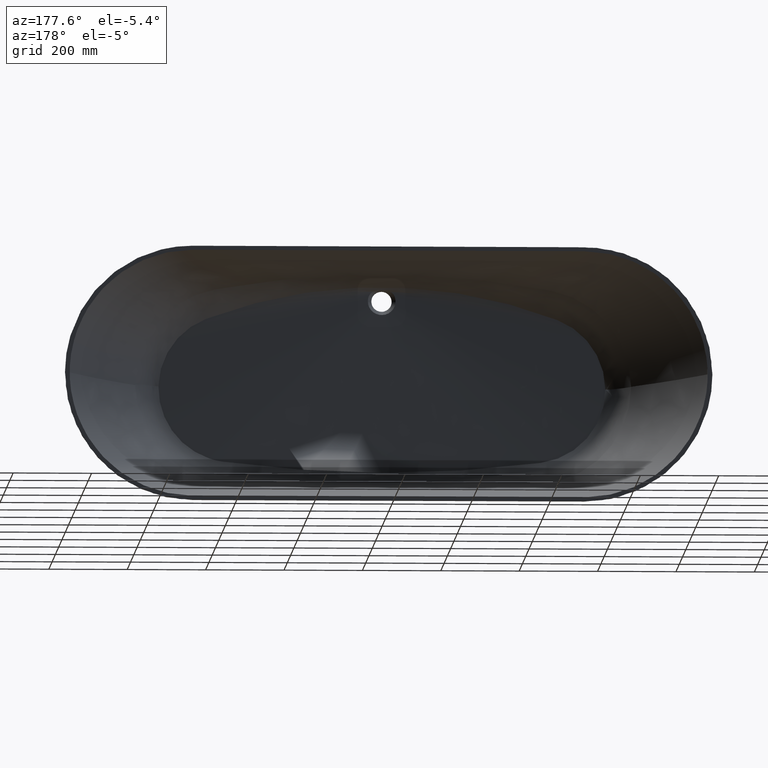
[diagram: clean part render]
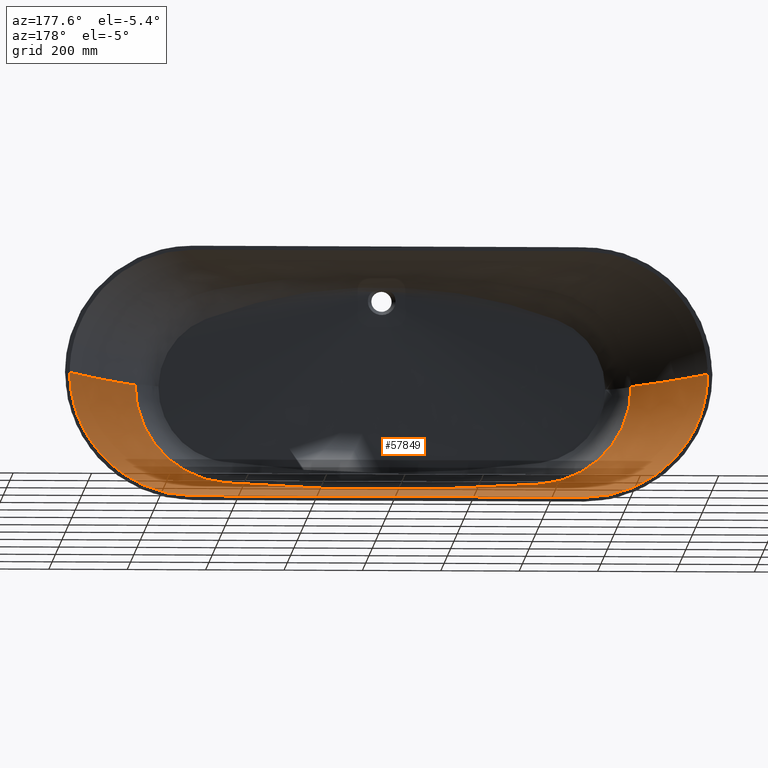
[diagram: same view with one face highlighted and labeled with its STEP entity id]
A machine part, auxiliary view. The second image highlights one B-rep face of the part: STEP entity #57849.
In plain terms, the highlighted face is a freeform B-spline surface patch.
Its self-contained STEP definition (entity closure, byte-faithful):
#1 = CARTESIAN_POINT ( 'NONE',  ( -575.5877172564567000, -341.0864136184644100, 158.6638056083282300 ) ) ;
#94 = CARTESIAN_POINT ( 'NONE',  ( 630.6949970449771900, -342.1587740799887500, 21.95705151268864300 ) ) ;
#184 = CARTESIAN_POINT ( 'NONE',  ( 329.6206190129660200, -229.4945656698601800, -282.3346143258879100 ) ) ;
#232 = CARTESIAN_POINT ( 'NONE',  ( -764.0662088125004600, 6.103191755186885300, 177.0799889853474800 ) ) ;
#321 = CARTESIAN_POINT ( 'NONE',  ( 803.7442180184385700, 4.078196779107174500, 91.54190436618688400 ) ) ;
#407 = CARTESIAN_POINT ( 'NONE',  ( 368.6773099577103500, -342.2003275952524700, -251.2907462629638400 ) ) ;
#456 = CARTESIAN_POINT ( 'NONE',  ( -778.0356419670351900, 0.0000000000000000000, 149.1714136724990300 ) ) ;
#551 = CARTESIAN_POINT ( 'NONE',  ( 743.1531407246657200, -118.1636264295131700, 109.0611729609926100 ) ) ;
#641 = CARTESIAN_POINT ( 'NONE',  ( 561.9880521461421900, 4.030193957024451400, -311.7322059474953400 ) ) ;
#692 = CARTESIAN_POINT ( 'NONE',  ( -618.1221777636341100, -339.9999999999996600, 85.16272386698983600 ) ) ;
#786 = CARTESIAN_POINT ( 'NONE',  ( 609.3499610726157700, -341.0822511187724300, 104.7716393825062400 ) ) ;
#874 = CARTESIAN_POINT ( 'NONE',  ( 584.5668625729688300, -117.1798576714378700, -273.8029949328997600 ) ) ;
#928 = CARTESIAN_POINT ( 'NONE',  ( -622.5001838920301200, -343.2411500567468500, 64.41522160104914000 ) ) ;
#1022 = CARTESIAN_POINT ( 'NONE',  ( 745.0183170301456800, 6.096833988364523700, 202.4884339893710300 ) ) ;
#1109 = CARTESIAN_POINT ( 'NONE',  ( 533.2264046249878200, -341.0877506438902200, -200.8378603227194200 ) ) ;
#1160 = CARTESIAN_POINT ( 'NONE',  ( -814.8991116536972200, 2.040614463959767600, 30.54011369560676000 ) ) ;
#1259 = CARTESIAN_POINT ( 'NONE',  ( 721.4670873965179700, 0.0000000000000000000, 224.7412752477861200 ) ) ;
#1293 = ORIENTED_EDGE ( 'NONE', *, *, #60644, .F. ) ;
#1342 = CARTESIAN_POINT ( 'NONE',  ( 764.8665375847919000, 6.105327035845340900, -178.5888003643220500 ) ) ;
#1392 = CARTESIAN_POINT ( 'NONE',  ( -703.0954075295179600, -232.0701188442986300, 8.287823299182461400 ) ) ;
#1489 = CARTESIAN_POINT ( 'NONE',  ( 561.9266488617311100, -339.9999999999993200, 174.7789762284996300 ) ) ;
#1575 = CARTESIAN_POINT ( 'NONE',  ( 792.2894824840840300, 0.0000000000000000000, -122.8712240048082700 ) ) ;
#1715 = CARTESIAN_POINT ( 'NONE',  ( 544.8501012860579100, -343.2697413008963300, 188.6732836065083600 ) ) ;
#1723 = CARTESIAN_POINT ( 'NONE',  ( 382.7499999999999400, -339.9999999999999400, 0.0000000000000000000 ) ) ;
#1800 = CARTESIAN_POINT ( 'NONE',  ( 629.9466430532240800, -339.9999999999993700, -45.86954081695724000 ) ) ;
#1937 = CARTESIAN_POINT ( 'NONE',  ( 618.0736312931654800, 2.018608865494632800, 293.1958917069006200 ) ) ;
#2027 = CARTESIAN_POINT ( 'NONE',  ( 630.6396377741135700, -343.2378964346709700, -15.20747942933785900 ) ) ;
#2172 = CARTESIAN_POINT ( 'NONE',  ( 530.7543993624196900, -230.4060432186322500, 252.6213740671136100 ) ) ;
#2252 = CIRCLE ( 'NONE', #35474, 5150.000000000000900 ) ;
#2315 = FACE_OUTER_BOUND ( 'NONE', #38673, .T. ) ;
#2404 = CARTESIAN_POINT ( 'NONE',  ( 471.1557398535958900, -342.1961851198565800, 233.3903419281673700 ) ) ;
#2580 = CARTESIAN_POINT ( 'NONE',  ( -631.3430918494087800, -342.1585976231139600, -15.22652929045368700 ) ) ;
#2623 = CARTESIAN_POINT ( 'NONE',  ( 124.0003897570650500, 0.0000000000000000000, 314.9999999999997700 ) ) ;
#2637 = CARTESIAN_POINT ( 'NONE',  ( 510.4381128527040200, 4.013084184324822200, 315.7376076539777600 ) ) ;
#2811 = CARTESIAN_POINT ( 'NONE',  ( -793.9753859816091800, 4.076476954991358400, -123.2313776581757700 ) ) ;
#2853 = CARTESIAN_POINT ( 'NONE',  ( 35.89358665425763900, -339.9999999999999400, 285.1749620125185600 ) ) ;
#2868 = CARTESIAN_POINT ( 'NONE',  ( 440.3651830034720500, -115.9887679956706000, 296.5482648792074100 ) ) ;
#2966 = CARTESIAN_POINT ( 'NONE',  ( 815.0000000000000000, 0.0000000000000000000, 1.127570259384924600E-014 ) ) ;
#3032 = CARTESIAN_POINT ( 'NONE',  ( -716.1698247946088700, -118.0057805050940800, -163.4329958974640800 ) ) ;
#3076 = CARTESIAN_POINT ( 'NONE',  ( -35.83585585413361200, -343.3901497790020600, 284.7311467737414400 ) ) ;
#3091 = CARTESIAN_POINT ( 'NONE',  ( 325.3787244671820500, -341.1126459572086600, 263.1289169655933100 ) ) ;
#3255 = CARTESIAN_POINT ( 'NONE',  ( -567.9207991050350300, -341.0849494037345300, -169.2711138384945900 ) ) ;
#3302 = CARTESIAN_POINT ( 'NONE',  ( -246.9056819041736900, 1.976203907549448000, 315.1551206838940400 ) ) ;
#3478 = CARTESIAN_POINT ( 'NONE',  ( -621.6465046808532400, 6.062595832473276900, -294.4955211053670000 ) ) ;
#3526 = CARTESIAN_POINT ( 'NONE',  ( -343.9759342722122100, -228.7354042791809000, 283.7435689260274800 ) ) ;
#3710 = CARTESIAN_POINT ( 'NONE',  ( -560.9102482521647100, 0.0000000000000000000, -311.0733539939182600 ) ) ;
#3756 = CARTESIAN_POINT ( 'NONE',  ( -394.1546740486854200, -342.2117291976358600, 251.5813168376722000 ) ) ;
#3932 = CARTESIAN_POINT ( 'NONE',  ( -418.0432986170204700, -339.9999999999999400, -248.0009104448624000 ) ) ;
#3980 = CARTESIAN_POINT ( 'NONE',  ( -530.1777226738148600, 4.017608161940962900, 314.8605696670975900 ) ) ;
#4150 = CARTESIAN_POINT ( 'NONE',  ( -368.3395658688324900, -343.3004913928788300, -251.0281738213410300 ) ) ;
#4198 = CARTESIAN_POINT ( 'NONE',  ( -536.2226858915813600, -116.6745334653193600, 286.3601145697259700 ) ) ;
#4375 = CARTESIAN_POINT ( 'NONE',  ( -249.1611635001544900, 1.985450540913383100, -315.1693131010908900 ) ) ;
#4419 = CARTESIAN_POINT ( 'NONE',  ( -491.7623054475595800, -341.0959395678137300, 224.8762016044146300 ) ) ;
#4601 = CARTESIAN_POINT ( 'NONE',  ( -109.1638907641595600, -228.3841077639561700, -290.3886555483383100 ) ) ;
#4649 = CARTESIAN_POINT ( 'NONE',  ( -647.3124534696784200, 6.065019722583746100, 281.1252962903097900 ) ) ;
#4832 = CARTESIAN_POINT ( 'NONE',  ( -33.50329404006279800, -342.2348034580744500, -264.4483100236336700 ) ) ;
#4877 = CARTESIAN_POINT ( 'NONE',  ( -672.5950873374828200, 0.0000000000000000000, 264.1242937712987700 ) ) ;
#4965 = CARTESIAN_POINT ( 'NONE',  ( 764.0619562190189500, -118.3327989297305900, 0.0000000000000000000 ) ) ;
#5050 = CARTESIAN_POINT ( 'NONE',  ( 124.9283673578878900, 3.954972769447932600, -315.2642497320763400 ) ) ;
#5098 = CARTESIAN_POINT ( 'NONE',  ( -561.9266488617330400, -340.0000000000008500, 174.7789762284995700 ) ) ;
#5187 = CARTESIAN_POINT ( 'NONE',  ( 632.0465459247038800, -341.0792988115569500, 7.359085540486498500 ) ) ;
#5274 = CARTESIAN_POINT ( 'NONE',  ( 234.8565916174706300, -115.1263344416256600, -305.1823811271733600 ) ) ;
#5320 = CARTESIAN_POINT ( 'NONE',  ( -574.4539627875202500, -343.2592408553913400, 158.2111933444919900 ) ) ;
#5411 = CARTESIAN_POINT ( 'NONE',  ( 812.1537017876625000, 6.120102184175527400, 61.33805039515350200 ) ) ;
#5498 = CARTESIAN_POINT ( 'NONE',  ( 302.6706927146212800, -341.1050543433013300, -256.1217845611115000 ) ) ;
#5546 = CARTESIAN_POINT ( 'NONE',  ( -762.5201037272196300, 2.034397251728961900, 176.4919910210265900 ) ) ;
#5638 = CARTESIAN_POINT ( 'NONE',  ( 802.0349090426318500, 0.0000000000000000000, 91.24014505336262500 ) ) ;
#5726 = CARTESIAN_POINT ( 'NONE',  ( 521.7620631529767900, 6.033332008531254500, -315.9316368005355000 ) ) ;
#5776 = CARTESIAN_POINT ( 'NONE',  ( -675.0494020024664200, -231.7748881228060000, 119.9540392427328600 ) ) ;
#5799 = CARTESIAN_POINT ( 'NONE',  ( -632.7485536667462600, -339.9999999999999400, 0.8504503916204713100 ) ) ;
#5868 = CARTESIAN_POINT ( 'NONE',  ( 618.1221777636365000, -340.0000000000009100, 85.16272386699000700 ) ) ;
#5955 = CARTESIAN_POINT ( 'NONE',  ( 560.9102482521661800, 0.0000000000000000000, -311.0733539939196200 ) ) ;
#6010 = CARTESIAN_POINT ( 'NONE',  ( -616.7816227282093000, -342.1624322147018800, 84.92189990779539200 ) ) ;
#6105 = CARTESIAN_POINT ( 'NONE',  ( 608.0489820443019700, -343.2467533563162800, 104.4709978011156200 ) ) ;
#6192 = VERTEX_POINT ( 'NONE', #51745 ) ;
#6194 = CARTESIAN_POINT ( 'NONE',  ( 493.5697559726224300, -339.9999999999988100, -225.7470596451665900 ) ) ;
#6250 = CARTESIAN_POINT ( 'NONE',  ( -811.2848229552795400, 4.080068122783680800, 61.23855179583306800 ) ) ;
#6349 = CARTESIAN_POINT ( 'NONE',  ( 743.5506131664997200, 2.032277996121507600, 201.8214562437496200 ) ) ;
#6438 = CARTESIAN_POINT ( 'NONE',  ( 532.1392420713547200, -343.2632519316674700, -200.3715644900239300 ) ) ;
#6462 = VERTEX_POINT ( 'NONE', #5799 ) ;
#6489 = CARTESIAN_POINT ( 'NONE',  ( -763.1761812682866500, -118.3250140978963400, 27.67400083259799000 ) ) ;
#6581 = CARTESIAN_POINT ( 'NONE',  ( 632.8423179377431300, -231.3586381536563300, 181.5207249320583900 ) ) ;
#6669 = CARTESIAN_POINT ( 'NONE',  ( 763.2695311441094600, 2.035109011948447400, -178.0917664587362000 ) ) ;
#6719 = CARTESIAN_POINT ( 'NONE',  ( -632.0465459247038800, -341.0792988115569500, 7.359085540486468300 ) ) ;
#6741 = CARTESIAN_POINT ( 'NONE',  ( -814.9978374447383700, 0.0000000000000000000, 1.167818525505383000 ) ) ;
#6811 = CARTESIAN_POINT ( 'NONE',  ( 560.8611309991913500, -342.1762031653511300, 174.2893780467468300 ) ) ;
#6899 = CARTESIAN_POINT ( 'NONE',  ( 684.8888267960483100, -231.9238583336311900, -101.6191375913490900 ) ) ;
#7038 = CARTESIAN_POINT ( 'NONE',  ( 646.7717505701442600, 4.043346481722498000, 280.7029361741312000 ) ) ;
#7046 = DIRECTION ( 'NONE',  ( 0.0000000000000000000, 0.0000000000000000000, 1.000000000000000000 ) ) ;
#7129 = CARTESIAN_POINT ( 'NONE',  ( 628.5505092838254800, -342.1591674935188500, -45.75498711406243800 ) ) ;
#7270 = CARTESIAN_POINT ( 'NONE',  ( 589.1813628566864100, -117.0490196390669700, 268.1461283558650200 ) ) ;
#7360 = CARTESIAN_POINT ( 'NONE',  ( 816.7569388805527500, 4.081497439874705300, 2.332924111629700900E-014 ) ) ;
#7498 = CARTESIAN_POINT ( 'NONE',  ( 491.7623054475598100, -341.0959395678137300, 224.8762016044150300 ) ) ;
#7724 = CARTESIAN_POINT ( 'NONE',  ( 530.5319265766819400, 6.026412242911432000, 315.2464023561565200 ) ) ;
#7899 = CARTESIAN_POINT ( 'NONE',  ( -813.4107953941061200, 6.120779072552819500, -63.12870159947267700 ) ) ;
#7939 = CARTESIAN_POINT ( 'NONE',  ( 114.0434097573276700, -227.1720508788593500, 298.6970435480347400 ) ) ;
#7943 = DIRECTION ( 'NONE',  ( -1.000000000000000000, -0.0000000000000000000, -0.0000000000000000000 ) ) ;
#7952 = CARTESIAN_POINT ( 'NONE',  ( 509.7764546427923200, 0.0000000000000000000, 314.9999999999999400 ) ) ;
#8127 = CARTESIAN_POINT ( 'NONE',  ( -792.2894824840819900, 0.0000000000000000000, -122.8712240048085700 ) ) ;
#8171 = CARTESIAN_POINT ( 'NONE',  ( 35.85509945417490500, -342.2600998526680200, 284.8790851866671700 ) ) ;
#8180 = DIRECTION ( 'NONE',  ( 0.0000000000000000000, 1.000000000000000000, 0.0000000000000000000 ) ) ;
#8185 = CARTESIAN_POINT ( 'NONE',  ( 394.6564560551738100, -339.9999999999999400, 252.0517692153417800 ) ) ;
#8328 = CARTESIAN_POINT ( 'NONE',  ( 500.0000000000000000, 0.0000000000000000000, 0.0000000000000000000 ) ) ;
#8353 = CARTESIAN_POINT ( 'NONE',  ( -596.6701053712051800, -340.0000000000012500, -132.1429300897934500 ) ) ;
#8398 = CARTESIAN_POINT ( 'NONE',  ( -124.1660729567453100, 3.932431011212892600, 315.2009616006076800 ) ) ;
#8412 = CARTESIAN_POINT ( 'NONE',  ( 325.0104628868845100, -343.3379378716250000, 262.7207060356836900 ) ) ;
#8577 = CARTESIAN_POINT ( 'NONE',  ( -566.7298747278511000, -343.2548482112078400, -168.8681225520632800 ) ) ;
#8623 = CARTESIAN_POINT ( 'NONE',  ( -238.7932224560115100, -114.5901684766831600, 306.0053283298399300 ) ) ;
#8801 = ORIENTED_EDGE ( 'NONE', *, *, #17885, .F. ) ;
#8803 = CARTESIAN_POINT ( 'NONE',  ( -620.4304795351798700, 2.020865277491092500, -293.8169106678657300 ) ) ;
#8851 = CARTESIAN_POINT ( 'NONE',  ( -325.3787244671834700, -341.1126459572087100, 263.1289169655938700 ) ) ;
#9026 = CARTESIAN_POINT ( 'NONE',  ( -492.3190380430444900, -230.5755075119143100, -269.1033763829492500 ) ) ;
#9076 = CARTESIAN_POINT ( 'NONE',  ( -510.7689419576598800, 6.019626276487236400, 316.1064114809665300 ) ) ;
#9249 = CARTESIAN_POINT ( 'NONE',  ( -417.2568108912566900, -342.1931351348592900, -247.4682432827792100 ) ) ;
#9293 = CARTESIAN_POINT ( 'NONE',  ( -529.4693148680795500, 0.0000000000000000000, 314.0889042889800200 ) ) ;
#9469 = CARTESIAN_POINT ( 'NONE',  ( -374.3619578487430300, 3.993089942051262700, -315.4514088253624800 ) ) ;
#9515 = CARTESIAN_POINT ( 'NONE',  ( -471.8584398596929100, -340.0000000000002800, 233.9326474661932000 ) ) ;
#9696 = CARTESIAN_POINT ( 'NONE',  ( -234.8565916174701200, -115.1263344416261700, -305.1823811271732400 ) ) ;
#9743 = CARTESIAN_POINT ( 'NONE',  ( -490.9901847759782100, -343.2878187034411300, 224.3267922487176000 ) ) ;
#9912 = CARTESIAN_POINT ( 'NONE',  ( -100.8608410058720200, -341.1161589223593800, -264.0536832092034300 ) ) ;
#9960 = CARTESIAN_POINT ( 'NONE',  ( -646.2310476706104500, 2.021673240861249000, 280.2805760579486200 ) ) ;
#10135 = CARTESIAN_POINT ( 'NONE',  ( 41.80651855293042000, 5.926060134943922400, -315.3689331027839600 ) ) ;
#10184 = CARTESIAN_POINT ( 'NONE',  ( -596.0136910934489800, -231.0086233034537300, 215.3566071794232600 ) ) ;
#10269 = CARTESIAN_POINT ( 'NONE',  ( 632.7499999999990900, -339.9999999999999400, 1.146399034729350700E-008 ) ) ;
#10359 = CARTESIAN_POINT ( 'NONE',  ( 124.6666503477239400, 0.0000000000000000000, -314.9999999999994900 ) ) ;
#10409 = CARTESIAN_POINT ( 'NONE',  ( -560.8611309991931600, -342.1762031653526600, 174.2893780467467800 ) ) ;
#10494 = CARTESIAN_POINT ( 'NONE',  ( 630.6396377741135700, -343.2378964346709700, 7.340694693779648000 ) ) ;
#10585 = CARTESIAN_POINT ( 'NONE',  ( 202.1875189989537200, -339.9999999999998900, -261.3327527147121100 ) ) ;
#10633 = CARTESIAN_POINT ( 'NONE',  ( -744.2844650983228100, 4.064555992243035700, 202.1549451165588800 ) ) ;
#10725 = CARTESIAN_POINT ( 'NONE',  ( 810.4159441228923700, 2.040034061391842600, 61.13905319651240700 ) ) ;
#10812 = CARTESIAN_POINT ( 'NONE',  ( 302.1370308077233100, -343.3151630299041100, -255.6027186251753000 ) ) ;
#10863 = CARTESIAN_POINT ( 'NONE',  ( -716.9216054074065600, -117.9645090942063100, 159.1504633050944600 ) ) ;
#10957 = CARTESIAN_POINT ( 'NONE',  ( 693.1064432841104700, -231.9616647750937700, 73.63966789106896700 ) ) ;
#11043 = CARTESIAN_POINT ( 'NONE',  ( 520.7717137450940800, 2.011110669510418200, -315.3105456001784400 ) ) ;
#11092 = CARTESIAN_POINT ( 'NONE',  ( -609.3499610726145200, -341.0822511187718600, 104.7716393825062100 ) ) ;
#11187 = CARTESIAN_POINT ( 'NONE',  ( 616.7816227282116900, -342.1624322147031900, 84.92189990779556300 ) ) ;
#11275 = CARTESIAN_POINT ( 'NONE',  ( 492.3190380430434100, -230.5755075119134900, -269.1033763829491400 ) ) ;
#11328 = CARTESIAN_POINT ( 'NONE',  ( -804.5988725063418800, 6.117295168660747100, 91.69278402259848800 ) ) ;
#11339 = CARTESIAN_POINT ( 'NONE',  ( 632.7499999999990900, -339.9999999999999400, 1.146400779507114000E-008 ) ) ;
#11389 = CIRCLE ( 'NONE', #28263, 249.9999999999990600 ) ;
#11424 = CARTESIAN_POINT ( 'NONE',  ( 763.2931562698642000, 4.068794503457913200, 176.7859900031864100 ) ) ;
#11508 = CARTESIAN_POINT ( 'NONE',  ( 492.5945127224962300, -342.1817679942112100, -225.2378229741719600 ) ) ;
#11564 = CARTESIAN_POINT ( 'NONE',  ( -809.5470652905092900, 0.0000000000000000000, 61.03955459719197300 ) ) ;
#11658 = CARTESIAN_POINT ( 'NONE',  ( 700.2643625761775200, -117.8416240740038900, 182.1506176296035200 ) ) ;
#11747 = CARTESIAN_POINT ( 'NONE',  ( 724.1213652187489100, 4.062101423485666300, -226.2975430333081000 ) ) ;
#11798 = CARTESIAN_POINT ( 'NONE',  ( -632.0993904940488600, -339.9999999999998900, 22.01373878014162200 ) ) ;
#11890 = CARTESIAN_POINT ( 'NONE',  ( 575.5877172564539700, -341.0864136184623600, 158.6638056083280900 ) ) ;
#11981 = CARTESIAN_POINT ( 'NONE',  ( 716.1698247946101200, -118.0057805050937700, -163.4329958974642200 ) ) ;
#12022 = CARTESIAN_POINT ( 'NONE',  ( 815.0000000000000000, 0.0000000000000000000, 1.127570259384924600E-014 ) ) ;
#12031 = CARTESIAN_POINT ( 'NONE',  ( -630.6396377741135700, -343.2378964346709700, 7.340694693779617800 ) ) ;
#12042 = DIRECTION ( 'NONE',  ( 0.0000000000000000000, 0.0000000000000000000, 1.000000000000000000 ) ) ;
#12121 = CARTESIAN_POINT ( 'NONE',  ( 674.3709888621735900, 6.073788272815368900, 265.3597835019283500 ) ) ;
#12209 = CARTESIAN_POINT ( 'NONE',  ( 616.6724670318988000, -341.0807614166641300, -90.33503574671523500 ) ) ;
#12352 = CARTESIAN_POINT ( 'NONE',  ( 645.6903447710761800, 0.0000000000000000000, 279.8582159417700300 ) ) ;
#12446 = CARTESIAN_POINT ( 'NONE',  ( 817.6354083208293600, 6.122246159812057400, -21.07814659073598000 ) ) ;
#12589 = CARTESIAN_POINT ( 'NONE',  ( 511.3794111462983700, -340.0000000000005700, 214.7374126765413400 ) ) ;
#12675 = CARTESIAN_POINT ( 'NONE',  ( 814.9999999999998900, 0.0000000000000000000, 2.255140518769849200E-014 ) ) ;
#12813 = CARTESIAN_POINT ( 'NONE',  ( 490.9901847759784300, -343.2878187034411300, 224.3267922487179900 ) ) ;
#13033 = CARTESIAN_POINT ( 'NONE',  ( 238.7932224560117300, -114.5901684766831500, 306.0053283298403800 ) ) ;
#13045 = CARTESIAN_POINT ( 'NONE',  ( 529.8235187709465200, 2.008804080970477500, 314.4747369780388300 ) ) ;
#13224 = CARTESIAN_POINT ( 'NONE',  ( -811.6674320947419100, 2.040259690850939800, -62.93605348923875200 ) ) ;
#13266 = CARTESIAN_POINT ( 'NONE',  ( 108.5080151504451300, -341.1282794912119100, 283.3694631486632700 ) ) ;
#13279 = CARTESIAN_POINT ( 'NONE',  ( 465.8236755542735600, -229.8221762429464300, 270.0956411166651500 ) ) ;
#13453 = CARTESIAN_POINT ( 'NONE',  ( -684.8888267960491000, -231.9238583336302200, -101.6191375913492600 ) ) ;
#13495 = CARTESIAN_POINT ( 'NONE',  ( -41.76622829076388400, 5.890564377817847600, 315.2641954203427900 ) ) ;
#13510 = CARTESIAN_POINT ( 'NONE',  ( 394.1546740486846800, -342.2117291976358600, 251.5813168376721500 ) ) ;
#13675 = CARTESIAN_POINT ( 'NONE',  ( -595.3894079361219800, -342.1651696303188700, -131.8218954427378500 ) ) ;
#13722 = CARTESIAN_POINT ( 'NONE',  ( -124.0003897570650700, 0.0000000000000000000, 315.0000000000004500 ) ) ;
#13736 = CARTESIAN_POINT ( 'NONE',  ( 247.0432162010156700, 3.952407815098895900, 315.3102413677892700 ) ) ;
#13898 = CARTESIAN_POINT ( 'NONE',  ( -675.7973803815205000, 4.052485988825063500, -265.3598078280702500 ) ) ;
#13946 = CARTESIAN_POINT ( 'NONE',  ( -218.0093423235740600, -339.9999999999993200, 275.8924725480690100 ) ) ;
#14124 = CARTESIAN_POINT ( 'NONE',  ( -584.5668625729694000, -117.1798576714376900, -273.8029949329005600 ) ) ;
#14171 = CARTESIAN_POINT ( 'NONE',  ( -325.0104628868858800, -343.3379378716250600, 262.7207060356842600 ) ) ;
#14347 = CARTESIAN_POINT ( 'NONE',  ( -448.8456824334063000, -341.0942449248824500, -242.2698055924319100 ) ) ;
#14394 = CARTESIAN_POINT ( 'NONE',  ( -510.1072837477481700, 2.006542092162412000, 315.3688038269888200 ) ) ;
#14576 = CARTESIAN_POINT ( 'NONE',  ( -458.9461580596554300, 6.014815575842029600, -315.8192338100476500 ) ) ;
#14622 = CARTESIAN_POINT ( 'NONE',  ( -482.5120256099496000, -229.9708264121154000, 267.3508362086644800 ) ) ;
#14792 = CARTESIAN_POINT ( 'NONE',  ( -373.6585320357626200, 0.0000000000000000000, -314.9999999999998300 ) ) ;
#14840 = CARTESIAN_POINT ( 'NONE',  ( -471.1557398535973700, -342.1961851198572600, 233.3903419281672000 ) ) ;
#14953 = B_SPLINE_SURFACE_WITH_KNOTS ( 'NONE', 3, 3, ( 
 ( #20498, #67743, #67972, #36538, #4965, #41807, #10269, #47103, #15614, #52423 ),
 ( #20949, #57686, #26219, #62935, #31462, #68193, #36764, #5187, #42028, #10494 ),
 ( #47332, #15844, #52649, #21174, #57909, #26437, #63165, #31691, #94, #36993 ),
 ( #5411, #42257, #10725, #47549, #16068, #52874, #21401, #58125, #26664, #63389 ),
 ( #31918, #321, #37218, #5638, #42481, #10957, #47779, #16298, #53099, #21634 ),
 ( #58351, #26887, #63618, #32144, #551, #37446, #5868, #42715, #11187, #48019 ),
 ( #16528, #53325, #21865, #58577, #27125, #63843, #32381, #786, #37687, #6105 ),
 ( #42949, #11424, #48249, #16766, #53562, #22099, #58808, #27361, #64077, #32616 ),
 ( #1022, #37920, #6349, #43198, #11658, #48487, #16998, #53804, #22337, #59048 ),
 ( #27593, #64309, #32846, #1259, #38155, #6581, #43432, #11890, #48717, #17237 ),
 ( #54032, #22567, #59281, #27830, #64545, #33075, #1489, #38390, #6811, #43658 ),
 ( #12121, #48953, #17473, #54264, #22791, #59507, #28054, #64773, #33301, #1715 ),
 ( #38614, #7038, #43878, #12352, #49176, #17695, #54483, #23020, #59731, #28277 ),
 ( #64999, #33528, #1937, #38835, #7270, #44102, #12589, #49409, #17932, #54715 ),
 ( #23250, #59962, #28505, #65229, #33761, #2172, #39063, #7498, #44331, #12813 ),
 ( #49645, #18163, #54943, #23478, #60189, #28734, #65450, #33991, #2404, #39293 ),
 ( #7724, #44557, #13045, #49868, #18383, #55176, #23698, #60418, #28958, #65674 ),
 ( #34222, #2637, #39524, #7952, #44786, #13279, #50103, #18615, #55405, #23928 ),
 ( #60651, #29189, #65902, #34454, #2868, #39752, #8185, #45018, #13510, #50332 ),
 ( #18844, #55628, #24157, #60885, #29411, #66125, #34680, #3091, #39978, #8412 ),
 ( #45248, #13736, #50555, #19068, #13033, #49855, #18371, #55163, #23686, #60405 ),
 ( #28946, #65662, #34209, #2623, #39510, #7939, #44774, #13266, #50091, #18602 ),
 ( #55391, #23915, #60636, #29175, #65887, #34442, #2853, #39737, #8171, #45003 ),
 ( #13495, #50318, #18829, #55614, #24142, #60871, #29397, #66111, #34666, #3076 ),
 ( #39964, #8398, #45235, #13722, #50541, #19054, #55836, #24358, #61097, #29620 ),
 ( #66330, #34894, #3302, #40189, #8623, #45460, #13946, #50760, #19277, #56057 ),
 ( #24585, #61322, #29845, #66557, #35116, #3526, #40409, #8851, #45685, #14171 ),
 ( #50988, #19514, #56281, #24806, #61528, #30067, #66775, #35339, #3756, #40633 ),
 ( #9076, #45906, #14394, #51209, #19739, #56494, #25031, #61757, #30289, #67006 ),
 ( #35562, #3980, #40853, #9293, #46127, #14622, #51432, #19967, #56709, #25241 ),
 ( #61967, #30501, #67224, #35787, #4198, #41067, #9515, #46352, #14840, #51647 ),
 ( #20180, #56933, #25465, #62184, #30717, #67438, #36007, #4419, #41280, #9743 ),
 ( #46573, #15065, #51875, #20405, #57155, #25677, #62393, #30934, #67656, #36230 ),
 ( #4649, #41498, #9960, #46798, #15294, #52104, #20637, #57378, #25907, #62615 ),
 ( #31152, #67883, #36452, #4877, #41719, #10184, #47018, #15524, #52332, #20861 ),
 ( #57600, #26131, #62850, #31374, #68111, #36676, #5098, #41941, #10409, #47246 ),
 ( #15755, #52561, #21088, #57823, #26353, #63075, #31603, #1, #36904, #5320 ),
 ( #42172, #10633, #47469, #15984, #52789, #21317, #58041, #26577, #63300, #31829 ),
 ( #232, #37130, #5546, #42390, #10863, #47691, #16209, #53008, #21542, #58262 ),
 ( #26800, #63531, #32056, #456, #37362, #5776, #42624, #11092, #47925, #16435 ),
 ( #53238, #21780, #58485, #27036, #63755, #32288, #692, #37590, #6010, #42857 ),
 ( #11328, #48159, #16670, #53467, #22004, #58713, #27265, #63985, #32522, #928 ),
 ( #37827, #6250, #43097, #11564, #48393, #16904, #53706, #22242, #58948, #27498 ),
 ( #64215, #32755, #1160, #38062, #6489, #43338, #11798, #48624, #17140, #53941 ),
 ( #22478, #59189, #27734, #64454, #32980, #1392, #38299, #6719, #43568, #12031 ),
 ( #48861, #17377, #54171, #22702, #60360, #28904, #65620, #34166, #2580, #39467 ),
 ( #7899, #44731, #13224, #50050, #18557, #55347, #23870, #60591, #29129, #65845 ),
 ( #34399, #2811, #39695, #8127, #44958, #13453, #50274, #18787, #55573, #24098 ),
 ( #60822, #29351, #66067, #34620, #3032, #39917, #8353, #45189, #13675, #50495 ),
 ( #19010, #55791, #24313, #61051, #29579, #66285, #34845, #3255, #40146, #8577 ),
 ( #45415, #13898, #50716, #19229, #56011, #24537, #61275, #29802, #66509, #35069 ),
 ( #3478, #40363, #8803, #45640, #14124, #50939, #19465, #56234, #24760, #61486 ),
 ( #30019, #66730, #35292, #3710, #40586, #9026, #45860, #14347, #51161, #19690 ),
 ( #56447, #24982, #61705, #30242, #66958, #35518, #3932, #40807, #9249, #46084 ),
 ( #14576, #51385, #19921, #56666, #25201, #61926, #30458, #67182, #35743, #4150 ),
 ( #41026, #9469, #46306, #14792, #51602, #20138, #56885, #25417, #62137, #30669 ),
 ( #67391, #35960, #4375, #41234, #9696, #46527, #15016, #51828, #20356, #57106 ),
 ( #25634, #62347, #30884, #67609, #36181, #4601, #41451, #9912, #46751, #15244 ),
 ( #52057, #20586, #57333, #25855, #62565, #31103, #67832, #36406, #4832, #41670 ),
 ( #10135, #46970, #15475, #52281, #20815, #57552, #26083, #62797, #31323, #68064 ),
 ( #36628, #5050, #41890, #10359, #47194, #15701, #52515, #21038, #57774, #26304 ),
 ( #63025, #31554, #68281, #36854, #5274, #42121, #10585, #47419, #15932, #52741 ),
 ( #21267, #57992, #26528, #63252, #31779, #184, #37083, #5498, #42347, #10812 ),
 ( #47640, #16158, #52957, #21491, #58211, #26752, #63478, #32005, #407, #37310 ),
 ( #5726, #42573, #11043, #47872, #16386, #53188, #21724, #58434, #26980, #63704 ),
 ( #32236, #641, #37536, #5955, #42803, #11275, #48105, #16617, #53414, #21955 ),
 ( #58662, #27211, #63932, #32466, #874, #37773, #6194, #43040, #11508, #48338 ),
 ( #16850, #53653, #22187, #58897, #27445, #64162, #32701, #1109, #38010, #6438 ),
 ( #43286, #11747, #48571, #17087, #53891, #22428, #59136, #27682, #64400, #32930 ),
 ( #1342, #38246, #6669, #43519, #11981, #48808, #17325, #54118, #22651, #59367 ),
 ( #27916, #64633, #33166, #1575, #38477, #6899, #43743, #12209, #49042, #17564 ),
 ( #54349, #22882, #59595, #28138, #64859, #33393, #1800, #38701, #7129, #43963 ),
 ( #12446, #49267, #17787, #54573, #23108, #59819, #28364, #65085, #33622, #2027 ),
 ( #38921, #7360, #44192, #12675, #49499, #18023, #54808, #23337, #60049, #28594 ) ),
 .UNSPECIFIED., .T., .F., .F.,
 ( 4, 1, 1, 1, 1, 1, 1, 1, 1, 1, 1, 1, 1, 1, 1, 1, 2, 1, 1, 1, 2, 1, 1, 1, 2, 1, 1, 1, 1, 1, 1, 1, 1, 1, 1, 1, 1, 1, 1, 1, 2, 1, 1, 1, 1, 1, 1, 1, 2, 1, 1, 1, 2, 1, 1, 1, 2, 1, 1, 1, 1, 1, 1, 1, 4 ),
 ( 4, 3, 3, 4 ),
 ( 0.0000000000000000000, 0.007374840335546109700, 0.01474968067109221900, 0.02212452100663833000, 0.02949936134218443900, 0.03687420167773055500, 0.04424904201327666000, 0.05162388234882276500, 0.05899872268436887800, 0.06637356301991499700, 0.07374840335546110900, 0.08112324369100722100, 0.08849808402655332000, 0.09587292436209943200, 0.1032477646976455300, 0.1106226050331916300, 0.1179974453687377800, 0.1510335122797216700, 0.1840695791907055200, 0.2171056461016893600, 0.2501417130126732400, 0.2831777799236570600, 0.3162138468346409300, 0.3492499137456248600, 0.3822859806566086800, 0.3896608209921547700, 0.3970356613277009100, 0.4044105016632469900, 0.4117853419987931300, 0.4191601823343392700, 0.4265350226698854100, 0.4339098630054314400, 0.4412847033409775800, 0.4486595436765236100, 0.4560343840120697500, 0.4634092243476158900, 0.4707840646831619200, 0.4781589050187080600, 0.4855337453542542000, 0.4929085856898002300, 0.5002834260253463700, 0.5155616439111807600, 0.5308398617970152600, 0.5461180796828496400, 0.5613962975686841400, 0.5766745154545185300, 0.5919527333403529200, 0.6072309512261874200, 0.6225091691120217000, 0.6544173050871846500, 0.6863254410623476100, 0.7182335770375104500, 0.7501417130126732900, 0.7820498489878361400, 0.8139579849629989800, 0.8458661209381617100, 0.8777742569133246700, 0.8930524747991589500, 0.9083306926849934500, 0.9236089105708278300, 0.9388871284566622200, 0.9541653463424967200, 0.9694435642283311100, 0.9847217821141656100, 1.000000000000000000 ),
 ( -0.01724584171417434300, 0.0000000000000000000, 1.000000000000000000, 1.010000000000000000 ),
 .UNSPECIFIED. ) ;
#14964 = CIRCLE ( 'NONE', #33061, 314.9999999999999400 ) ;
#15016 = CARTESIAN_POINT ( 'NONE',  ( -202.1875189989521300, -340.0000000000013600, -261.3327527147126800 ) ) ;
#15065 = CARTESIAN_POINT ( 'NONE',  ( -618.5634553531751900, 4.037217730989261200, 293.6205719916612200 ) ) ;
#15244 = CARTESIAN_POINT ( 'NONE',  ( -100.6964241789752500, -343.3484767670802300, -263.5321986084284700 ) ) ;
#15294 = CARTESIAN_POINT ( 'NONE',  ( -614.3376912737633100, -117.2267074212815600, 255.3676678328047800 ) ) ;
#15475 = CARTESIAN_POINT ( 'NONE',  ( 41.71328396208789300, 1.975353378314640900, -315.1229777009279500 ) ) ;
#15524 = CARTESIAN_POINT ( 'NONE',  ( -545.8435690493084800, -341.0899137669659900, 189.1914063943316900 ) ) ;
#15614 = CARTESIAN_POINT ( 'NONE',  ( 631.3430918494087800, -342.1585976231139600, 1.169327015423937900E-008 ) ) ;
#15701 = CARTESIAN_POINT ( 'NONE',  ( 109.1638907641596500, -228.3841077639568200, -290.3886555483382500 ) ) ;
#15755 = CARTESIAN_POINT ( 'NONE',  ( -723.5366443371852900, 6.089766653699433300, 225.8418636746333400 ) ) ;
#15844 = CARTESIAN_POINT ( 'NONE',  ( 815.7759945406490900, 4.081228927919532600, 30.58870423954759900 ) ) ;
#15932 = CARTESIAN_POINT ( 'NONE',  ( 201.8463471399618100, -342.2230371351608900, -260.8145014549888300 ) ) ;
#15984 = CARTESIAN_POINT ( 'NONE',  ( -742.8167612346768500, 0.0000000000000000000, 201.4879673709375300 ) ) ;
#16008 = CARTESIAN_POINT ( 'NONE',  ( -402.2780612244896500, -339.9999999999999400, -249.2361426936553000 ) ) ;
#16068 = CARTESIAN_POINT ( 'NONE',  ( 759.1651328348151500, -118.2913594594307500, 55.27012907597926300 ) ) ;
#16158 = CARTESIAN_POINT ( 'NONE',  ( 458.5151080734824500, 4.009877050561350100, -315.5461558733650800 ) ) ;
#16209 = CARTESIAN_POINT ( 'NONE',  ( -600.2557647307970700, -340.0000000000004500, 123.8624036375278900 ) ) ;
#16298 = CARTESIAN_POINT ( 'NONE',  ( 623.8711792200338100, -341.0803833522499000, 64.59433706299148500 ) ) ;
#16386 = CARTESIAN_POINT ( 'NONE',  ( 491.5638376173482100, -116.6142368022250900, -296.9930157469034400 ) ) ;
#16435 = CARTESIAN_POINT ( 'NONE',  ( -608.0489820443007100, -343.2467533563157100, 104.4709978011155900 ) ) ;
#16517 = CARTESIAN_POINT ( 'NONE',  ( -500.0000000000000000, 0.0000000000000000000, -314.9999999999999400 ) ) ;
#16528 = CARTESIAN_POINT ( 'NONE',  ( 780.4554348845040300, 6.108768706172790900, 149.9199802269384300 ) ) ;
#16617 = CARTESIAN_POINT ( 'NONE',  ( 448.8456824334049900, -341.0942449248812500, -242.2698055924309700 ) ) ;
#16670 = CARTESIAN_POINT ( 'NONE',  ( -802.8895635305351600, 2.039098389553582400, 91.39102470977424300 ) ) ;
#16766 = CARTESIAN_POINT ( 'NONE',  ( 761.7470511845831400, 0.0000000000000000000, 176.1979920388654900 ) ) ;
#16850 = CARTESIAN_POINT ( 'NONE',  ( 676.4743766849915100, 6.078728983237589900, -265.6890791122312400 ) ) ;
#16904 = CARTESIAN_POINT ( 'NONE',  ( -698.8474989271785500, -232.0231539285970500, 49.45611531453650400 ) ) ;
#16998 = CARTESIAN_POINT ( 'NONE',  ( 588.9523895730619600, -339.9999999999992600, 141.8848541848991000 ) ) ;
#17087 = CARTESIAN_POINT ( 'NONE',  ( 722.6376388438470700, 0.0000000000000000000, -225.6999095224805700 ) ) ;
#17140 = CARTESIAN_POINT ( 'NONE',  ( -630.6949970449768400, -342.1587740799885800, 21.95705151268859700 ) ) ;
#17237 = CARTESIAN_POINT ( 'NONE',  ( 574.4539627875175300, -343.2592408553891800, 158.2111933444918500 ) ) ;
#17325 = CARTESIAN_POINT ( 'NONE',  ( 596.6701053712073400, -340.0000000000006800, -132.1429300897932300 ) ) ;
#17367 = CARTESIAN_POINT ( 'NONE',  ( 703.0954075295183000, -232.0701188442985200, 1.193211191029293400E-025 ) ) ;
#17377 = CARTESIAN_POINT ( 'NONE',  ( -816.7569388805528700, 4.081497439874709700, -21.04529350198582800 ) ) ;
#17473 = CARTESIAN_POINT ( 'NONE',  ( 673.1870545123802000, 2.024596090938456600, 264.5361236815076000 ) ) ;
#17564 = CARTESIAN_POINT ( 'NONE',  ( 615.3216480266680700, -343.2422842499915400, -90.11158818543536600 ) ) ;
#17695 = CARTESIAN_POINT ( 'NONE',  ( 575.4336184708719200, -230.8165435916165800, 229.6869820715427000 ) ) ;
#17754 = B_SPLINE_CURVE_WITH_KNOTS ( 'NONE', 3,
 ( #30525, #25265, #67248, #35811 ),
 .UNSPECIFIED., .F., .F.,
 ( 4, 4 ),
 ( 3.816391647148975600E-017, 0.9999999999999978900 ),
 .UNSPECIFIED. ) ;
#17787 = CARTESIAN_POINT ( 'NONE',  ( 815.8784694402763800, 2.040748719937352600, -21.01244041323551000 ) ) ;
#17885 = EDGE_CURVE ( 'NONE', #35708, #68184, #2252, .T. ) ;
#17932 = CARTESIAN_POINT ( 'NONE',  ( 510.5344907703044400, -342.1876967335659300, 214.1893665643883100 ) ) ;
#18023 = CARTESIAN_POINT ( 'NONE',  ( 703.0954075295183000, -232.0701188442985200, 0.0000000000000000000 ) ) ;
#18163 = CARTESIAN_POINT ( 'NONE',  ( 559.9274595388108100, 4.024301072436058400, 310.6995539644528300 ) ) ;
#18262 = LINE ( 'NONE', #44323, #55273 ) ;
#18371 = CARTESIAN_POINT ( 'NONE',  ( 218.0093423235744900, -339.9999999999993200, 275.8924725480695800 ) ) ;
#18383 = CARTESIAN_POINT ( 'NONE',  ( 508.9308042671980300, -116.4804892833640800, 291.7163987625204400 ) ) ;
#18557 = CARTESIAN_POINT ( 'NONE',  ( -760.2512966498192100, -118.3044425818922000, -57.25437983429414900 ) ) ;
#18602 = CARTESIAN_POINT ( 'NONE',  ( 108.3984033760514100, -343.3848384736347700, 283.0659467051114000 ) ) ;
#18615 = CARTESIAN_POINT ( 'NONE',  ( 435.5294391407438800, -341.1017782375705000, 244.1629162162752800 ) ) ;
#18787 = CARTESIAN_POINT ( 'NONE',  ( -616.6724670319007400, -341.0807614166625400, -90.33503574671544800 ) ) ;
#18829 = CARTESIAN_POINT ( 'NONE',  ( -41.69985387469903800, 1.963521459272615800, 315.0880651401142200 ) ) ;
#18844 = CARTESIAN_POINT ( 'NONE',  ( 371.5388128565829800, 5.970014506126523700, 315.7266657214310600 ) ) ;
#19010 = CARTESIAN_POINT ( 'NONE',  ( -724.8632284061998200, 6.093152135228501200, -226.5963597887219400 ) ) ;
#19054 = CARTESIAN_POINT ( 'NONE',  ( -114.0434097573281100, -227.1720508788593000, 298.6970435480354800 ) ) ;
#19068 = CARTESIAN_POINT ( 'NONE',  ( 246.7681476073315700, 0.0000000000000000000, 315.0000000000001700 ) ) ;
#19077 = DIRECTION ( 'NONE',  ( 0.0000000000000000000, 1.000000000000000000, 0.0000000000000000000 ) ) ;
#19229 = CARTESIAN_POINT ( 'NONE',  ( -674.4433877745769900, 0.0000000000000000000, -264.7012652597492200 ) ) ;
#19277 = CARTESIAN_POINT ( 'NONE',  ( -217.7861013325163500, -342.2434309100527200, 275.5506491355485000 ) ) ;
#19378 = VERTEX_POINT ( 'NONE', #6741 ) ;
#19465 = CARTESIAN_POINT ( 'NONE',  ( -493.5697559726209000, -339.9999999999979500, -225.7470596451665000 ) ) ;
#19514 = CARTESIAN_POINT ( 'NONE',  ( -456.7521163537947500, 4.000647866950853200, 315.6364314064899800 ) ) ;
#19580 = VERTEX_POINT ( 'NONE', #2966 ) ;
#19690 = CARTESIAN_POINT ( 'NONE',  ( -447.9848239064827500, -343.2827347746441500, -241.7384477549959500 ) ) ;
#19739 = CARTESIAN_POINT ( 'NONE',  ( -490.5933315201912700, -116.3493278796149900, 293.6149129105281800 ) ) ;
#19921 = CARTESIAN_POINT ( 'NONE',  ( -458.0840580873094700, 2.004938525280676400, -315.2730779366825100 ) ) ;
#19967 = CARTESIAN_POINT ( 'NONE',  ( -450.2747211475821700, -341.1002917358789500, 240.7073999204010000 ) ) ;
#20138 = CARTESIAN_POINT ( 'NONE',  ( -329.6206190129661900, -229.4945656698593300, -282.3346143258883100 ) ) ;
#20180 = CARTESIAN_POINT ( 'NONE',  ( -589.9414651397157700, 6.046280142509465000, 304.0463065542809300 ) ) ;
#20356 = CARTESIAN_POINT ( 'NONE',  ( -201.8463471399601600, -342.2230371351623700, -260.8145014549894000 ) ) ;
#20405 = CARTESIAN_POINT ( 'NONE',  ( -617.5838072331507600, 0.0000000000000000000, 292.7712114221424700 ) ) ;
#20498 = CARTESIAN_POINT ( 'NONE',  ( 817.6354083208292400, 6.122246159812057400, 2.371815908059626700E-014 ) ) ;
#20586 = CARTESIAN_POINT ( 'NONE',  ( -41.75990125750915600, 3.950706756629281700, -315.2459554018559500 ) ) ;
#20637 = CARTESIAN_POINT ( 'NONE',  ( -529.4673069439729700, -340.0000000000001100, 202.8036065580624000 ) ) ;
#20815 = CARTESIAN_POINT ( 'NONE',  ( 38.96356314792385700, -114.5408505455027800, -307.8691389515115600 ) ) ;
#20861 = CARTESIAN_POINT ( 'NONE',  ( -544.8501012860581300, -343.2697413008970100, 188.6732836065080800 ) ) ;
#20949 = CARTESIAN_POINT ( 'NONE',  ( 817.6354083208292400, 6.122246159812057400, 10.17448283808294800 ) ) ;
#21038 = CARTESIAN_POINT ( 'NONE',  ( 100.8608410058735400, -341.1161589223602800, -264.0536832092035400 ) ) ;
#21088 = CARTESIAN_POINT ( 'NONE',  ( -722.1569397100739700, 2.029922217899811100, 225.1081380567359800 ) ) ;
#21149 = ORIENTED_EDGE ( 'NONE', *, *, #63833, .F. ) ;
#21174 = CARTESIAN_POINT ( 'NONE',  ( 814.0222287667493200, 0.0000000000000000000, 30.49152315166599800 ) ) ;
#21267 = CARTESIAN_POINT ( 'NONE',  ( 374.7136707552331800, 5.989634913076915100, -315.6771132380437200 ) ) ;
#21317 = CARTESIAN_POINT ( 'NONE',  ( -648.7834422875337200, -231.5134518423602400, 162.2847712085651000 ) ) ;
#21393 = VERTEX_POINT ( 'NONE', #65068 ) ;
#21401 = CARTESIAN_POINT ( 'NONE',  ( 629.2377978326206900, -340.0000000000004000, 43.59704306228965000 ) ) ;
#21407 = EDGE_CURVE ( 'NONE', #68184, #6192, #11389, .T. ) ;
#21491 = CARTESIAN_POINT ( 'NONE',  ( 457.6530081011364400, 0.0000000000000000000, -314.9999999999999400 ) ) ;
#21542 = CARTESIAN_POINT ( 'NONE',  ( -599.0030312714005700, -342.1669455585267200, 123.5055185041643400 ) ) ;
#21634 = CARTESIAN_POINT ( 'NONE',  ( 622.5001838920322800, -343.2411500567480400, 64.41522160104935300 ) ) ;
#21724 = CARTESIAN_POINT ( 'NONE',  ( 418.0432986170206400, -339.9999999999999400, -248.0009104448623400 ) ) ;
#21780 = CARTESIAN_POINT ( 'NONE',  ( -793.1745037819672500, 4.075662395552413400, 121.1390951896319700 ) ) ;
#21865 = CARTESIAN_POINT ( 'NONE',  ( 778.8422396061884000, 2.036256235390930600, 149.4209358573124600 ) ) ;
#21916 = EDGE_CURVE ( 'NONE', #22861, #19378, #57063, .T. ) ;
#21955 = CARTESIAN_POINT ( 'NONE',  ( 447.9848239064814900, -343.2827347746430200, -241.7384477549949500 ) ) ;
#22004 = CARTESIAN_POINT ( 'NONE',  ( -752.4777750930073800, -118.2371045350398200, 82.49138932935949200 ) ) ;
#22099 = CARTESIAN_POINT ( 'NONE',  ( 662.8924377006269400, -231.6527220736864800, 141.7066603057043300 ) ) ;
#22187 = CARTESIAN_POINT ( 'NONE',  ( 675.1203840780481200, 2.026242994412530000, -265.0305365439102200 ) ) ;
#22242 = CARTESIAN_POINT ( 'NONE',  ( -628.5417008216736600, -341.0797684607136900, 43.53845233976706200 ) ) ;
#22337 = CARTESIAN_POINT ( 'NONE',  ( 587.7557685187724700, -342.1697309631520100, 141.4768558444257600 ) ) ;
#22428 = CARTESIAN_POINT ( 'NONE',  ( 628.0624801528175600, -231.5050596263339700, -189.6221738032741900 ) ) ;
#22469 = CARTESIAN_POINT ( 'NONE',  ( 402.2780612244897600, -339.9999999999999400, -249.2361426936553000 ) ) ;
#22478 = CARTESIAN_POINT ( 'NONE',  ( -817.6354083208293600, 6.122246159812064500, 10.17448283808291100 ) ) ;
#22567 = CARTESIAN_POINT ( 'NONE',  ( 699.2453590576344600, 4.054707332790087500, 246.4802815863935200 ) ) ;
#22651 = CARTESIAN_POINT ( 'NONE',  ( 595.3894079361243700, -342.1651696303183600, -131.8218954427376600 ) ) ;
#22702 = CARTESIAN_POINT ( 'NONE',  ( -815.0000000000000000, 0.0000000000000000000, -20.97958732448535500 ) ) ;
#22791 = CARTESIAN_POINT ( 'NONE',  ( 638.2698752250370300, -117.3961888606714000, 240.2443395750389900 ) ) ;
#22861 = VERTEX_POINT ( 'NONE', #16517 ) ;
#22882 = CARTESIAN_POINT ( 'NONE',  ( 812.5391137444213400, 4.080519381701860100, -63.03237754435559000 ) ) ;
#23020 = CARTESIAN_POINT ( 'NONE',  ( 529.0076438287052300, -341.0918345640842500, 202.5347728029280200 ) ) ;
#23108 = CARTESIAN_POINT ( 'NONE',  ( 764.0619562190189500, -118.3327989297305900, -19.07460122437323900 ) ) ;
#23250 = CARTESIAN_POINT ( 'NONE',  ( 589.9414651397124800, 6.046280142509461400, 304.0463065542815600 ) ) ;
#23337 = CARTESIAN_POINT ( 'NONE',  ( 632.0465459247038800, -341.0792988115569500, 1.157863025076644200E-008 ) ) ;
#23478 = CARTESIAN_POINT ( 'NONE',  ( 559.1371027273656900, 0.0000000000000000000, 309.8880363351914900 ) ) ;
#23686 = CARTESIAN_POINT ( 'NONE',  ( 217.7861013325168100, -342.2434309100527200, 275.5506491355490700 ) ) ;
#23698 = CARTESIAN_POINT ( 'NONE',  ( 450.5939023798819700, -339.9999999999997700, 240.9711963192948200 ) ) ;
#23870 = CARTESIAN_POINT ( 'NONE',  ( -629.9466430532234000, -340.0000000000005700, -45.86954081695788000 ) ) ;
#23915 = CARTESIAN_POINT ( 'NONE',  ( 41.73304108273153200, 3.927042918545231600, 315.1761302802285600 ) ) ;
#23928 = CARTESIAN_POINT ( 'NONE',  ( 434.9295532711690800, -343.3053347127115000, 243.6493969113170400 ) ) ;
#24098 = CARTESIAN_POINT ( 'NONE',  ( -615.3216480266700000, -343.2422842499899500, -90.11158818543557900 ) ) ;
#24142 = CARTESIAN_POINT ( 'NONE',  ( -39.74230666253028900, -113.8547768102730100, 309.8935435234873200 ) ) ;
#24157 = CARTESIAN_POINT ( 'NONE',  ( 371.1332681249216400, 1.990004835375508000, 315.2422219071433500 ) ) ;
#24313 = CARTESIAN_POINT ( 'NONE',  ( -723.3795020312978700, 2.031050711742834000, -225.9987262778944100 ) ) ;
#24358 = CARTESIAN_POINT ( 'NONE',  ( -108.5080151504458700, -341.1282794912118600, 283.3694631486639500 ) ) ;
#24537 = CARTESIAN_POINT ( 'NONE',  ( -588.1281135834605000, -231.2249356111393900, -224.3857998738421000 ) ) ;
#24585 = CARTESIAN_POINT ( 'NONE',  ( -371.5388128565828100, 5.970014506126528200, 315.7266657214316900 ) ) ;
#24760 = CARTESIAN_POINT ( 'NONE',  ( -492.5945127224945300, -342.1817679942104200, -225.2378229741718800 ) ) ;
#24806 = CARTESIAN_POINT ( 'NONE',  ( -456.2057485805830800, 0.0000000000000000000, 314.9999999999998900 ) ) ;
#24982 = CARTESIAN_POINT ( 'NONE',  ( -521.2668884490353800, 4.022221339020839000, -315.6210912003570000 ) ) ;
#25031 = CARTESIAN_POINT ( 'NONE',  ( -435.8293820755317800, -339.9999999999999400, 244.4196758687543300 ) ) ;
#25201 = CARTESIAN_POINT ( 'NONE',  ( -432.6585779470703400, -116.2563450662323700, -299.1655779283820500 ) ) ;
#25241 = CARTESIAN_POINT ( 'NONE',  ( -449.6363586829808100, -343.3008752076366400, 240.1798071226135700 ) ) ;
#25265 = CARTESIAN_POINT ( 'NONE',  ( -764.0599935759352100, -118.3327816957131900, 1.061670588968366600 ) ) ;
#25417 = CARTESIAN_POINT ( 'NONE',  ( -302.6706927146200900, -341.1050543433000800, -256.1217845611120100 ) ) ;
#25465 = CARTESIAN_POINT ( 'NONE',  ( -589.0597838958406100, 2.015426714169821700, 303.2083629655429600 ) ) ;
#25634 = CARTESIAN_POINT ( 'NONE',  ( -125.0592258629699100, 5.932459154171883000, -315.3963745981151900 ) ) ;
#25677 = CARTESIAN_POINT ( 'NONE',  ( -553.6254299459883400, -230.6151633217319800, 242.1397182841918400 ) ) ;
#25855 = CARTESIAN_POINT ( 'NONE',  ( -41.66666666666662900, 0.0000000000000000000, -314.9999999999999400 ) ) ;
#25907 = CARTESIAN_POINT ( 'NONE',  ( -528.5479807134348700, -342.1836691281678200, 202.2659390477928400 ) ) ;
#26083 = CARTESIAN_POINT ( 'NONE',  ( 33.55735611043899500, -339.9999999999999400, -264.9716032043372100 ) ) ;
#26131 = CARTESIAN_POINT ( 'NONE',  ( -699.2453590576354800, 4.054707332790108900, 246.4802815863924400 ) ) ;
#26219 = CARTESIAN_POINT ( 'NONE',  ( 815.8784694402762600, 2.040748719937352600, 10.14276627455793700 ) ) ;
#26304 = CARTESIAN_POINT ( 'NONE',  ( 100.6964241789768000, -343.3484767670811900, -263.5321986084285900 ) ) ;
#26353 = CARTESIAN_POINT ( 'NONE',  ( -681.4660062669900100, -117.7050242918221700, 203.4687380745414800 ) ) ;
#26437 = CARTESIAN_POINT ( 'NONE',  ( 702.3190629476481500, -232.0612960005651900, 24.84810215279295800 ) ) ;
#26528 = CARTESIAN_POINT ( 'NONE',  ( 374.0102449422527700, 1.996544971025638200, -315.2257044126810700 ) ) ;
#26577 = CARTESIAN_POINT ( 'NONE',  ( -588.3540790459194300, -341.0848654815772000, 141.6808550146626000 ) ) ;
#26664 = CARTESIAN_POINT ( 'NONE',  ( 627.8456038107293600, -342.1595369214284100, 43.47986161724470800 ) ) ;
#26752 = CARTESIAN_POINT ( 'NONE',  ( 403.1272070231266900, -229.9836202373711000, -278.0731353085955700 ) ) ;
#26800 = CARTESIAN_POINT ( 'NONE',  ( -780.4554348845089200, 6.108768706172787300, 149.9199802269380400 ) ) ;
#26887 = CARTESIAN_POINT ( 'NONE',  ( 793.1745037819700900, 4.075662395552424000, 121.1390951896318200 ) ) ;
#26980 = CARTESIAN_POINT ( 'NONE',  ( 417.2568108912569200, -342.1931351348592900, -247.4682432827791000 ) ) ;
#27036 = CARTESIAN_POINT ( 'NONE',  ( -791.5067078519804200, 0.0000000000000000000, 120.7363970561855500 ) ) ;
#27125 = CARTESIAN_POINT ( 'NONE',  ( 731.2650840246552700, -118.0723022476388000, 134.7028716930187500 ) ) ;
#27211 = CARTESIAN_POINT ( 'NONE',  ( 621.0384921080147900, 4.041730554982192000, -294.1562158866151400 ) ) ;
#27265 = CARTESIAN_POINT ( 'NONE',  ( -624.5566768840323000, -339.9999999999996000, 64.68389479396233800 ) ) ;
#27361 = CARTESIAN_POINT ( 'NONE',  ( 599.6293980010983700, -341.0834727792629900, 123.6839610708459500 ) ) ;
#27445 = CARTESIAN_POINT ( 'NONE',  ( 635.1877622915172900, -117.4916845460295700, -245.6084723640644000 ) ) ;
#27498 = CARTESIAN_POINT ( 'NONE',  ( -627.1495067997824400, -343.2393053821417100, 43.42127089472212000 ) ) ;
#27593 = CARTESIAN_POINT ( 'NONE',  ( 723.5366443371849500, 6.089766653699394200, 225.8418636746321500 ) ) ;
#27682 = CARTESIAN_POINT ( 'NONE',  ( 567.9207991050334400, -341.0849494037346400, -169.2711138384944100 ) ) ;
#27734 = CARTESIAN_POINT ( 'NONE',  ( -815.8784694402763800, 2.040748719937354800, 10.14276627455790200 ) ) ;
#27763 = EDGE_CURVE ( 'NONE', #19580, #21393, #14964, .T. ) ;
#27830 = CARTESIAN_POINT ( 'NONE',  ( 697.9610704380345400, 0.0000000000000000000, 245.6938838261210100 ) ) ;
#27916 = CARTESIAN_POINT ( 'NONE',  ( 794.8183377303747600, 6.114715432487058100, -123.4114544848590600 ) ) ;
#28054 = CARTESIAN_POINT ( 'NONE',  ( 546.3403029309334900, -339.9999999999998900, 189.4504677882437700 ) ) ;
#28138 = CARTESIAN_POINT ( 'NONE',  ( 810.7957504450571400, 0.0000000000000000000, -62.83972943412166500 ) ) ;
#28263 = AXIS2_PLACEMENT_3D ( 'NONE', #64911, #64842, #64761 ) ;
#28277 = CARTESIAN_POINT ( 'NONE',  ( 528.0883175981672400, -343.2755036922519600, 201.9971052926584000 ) ) ;
#28364 = CARTESIAN_POINT ( 'NONE',  ( 632.7499999999990900, -339.9999999999999400, -15.26462901268513900 ) ) ;
#28505 = CARTESIAN_POINT ( 'NONE',  ( 589.0597838958374300, 2.015426714169820300, 303.2083629655435300 ) ) ;
#28594 = CARTESIAN_POINT ( 'NONE',  ( 630.6396377741135700, -343.2378964346709700, 1.180791005771231400E-008 ) ) ;
#28734 = CARTESIAN_POINT ( 'NONE',  ( 506.9934401644707700, -230.1907440071489900, 261.0479243674915900 ) ) ;
#28904 = CARTESIAN_POINT ( 'NONE',  ( -703.0954075295179600, -232.0701188442986300, -17.16961512426119200 ) ) ;
#28946 = CARTESIAN_POINT ( 'NONE',  ( 124.2489145565854600, 5.898646516819341400, 315.3014424009106200 ) ) ;
#28958 = CARTESIAN_POINT ( 'NONE',  ( 449.9555399152806100, -342.2005834717574000, 240.4436035215073800 ) ) ;
#29129 = CARTESIAN_POINT ( 'NONE',  ( -628.5505092838247900, -342.1591674935201000, -45.75498711406309100 ) ) ;
#29175 = CARTESIAN_POINT ( 'NONE',  ( 41.66666666666668600, 0.0000000000000000000, 315.0000000000000000 ) ) ;
#29189 = CARTESIAN_POINT ( 'NONE',  ( 456.7521163537946900, 4.000647866950851400, 315.6364314064900900 ) ) ;
#29351 = CARTESIAN_POINT ( 'NONE',  ( -764.0680343644506800, 4.070218023896905500, -178.3402834115289000 ) ) ;
#29397 = CARTESIAN_POINT ( 'NONE',  ( -35.89358665425771000, -339.9999999999999400, 285.1749620125185600 ) ) ;
#29411 = CARTESIAN_POINT ( 'NONE',  ( 359.1727416760296000, -115.3904151712075900, 300.9547645653749400 ) ) ;
#29579 = CARTESIAN_POINT ( 'NONE',  ( -679.6207075889776700, -117.7704599986856700, -208.3730222434342400 ) ) ;
#29620 = CARTESIAN_POINT ( 'NONE',  ( -108.3984033760521900, -343.3848384736347200, 283.0659467051120800 ) ) ;
#29802 = CARTESIAN_POINT ( 'NONE',  ( -533.2264046249873700, -341.0877506438903900, -200.8378603227198500 ) ) ;
#29845 = CARTESIAN_POINT ( 'NONE',  ( -371.1332681249214700, 1.990004835375509300, 315.2422219071440300 ) ) ;
#30019 = CARTESIAN_POINT ( 'NONE',  ( -562.5269540931287800, 6.045290935536700200, -312.0616319242817000 ) ) ;
#30067 = CARTESIAN_POINT ( 'NONE',  ( -419.7455563796307300, -229.4135401182045900, 275.5743880988240400 ) ) ;
#30242 = CARTESIAN_POINT ( 'NONE',  ( -520.2765390411526600, 0.0000000000000000000, -314.9999999999999400 ) ) ;
#30289 = CARTESIAN_POINT ( 'NONE',  ( -435.2294962059569900, -342.2035564751410000, 243.9061565637960900 ) ) ;
#30458 = CARTESIAN_POINT ( 'NONE',  ( -369.3527981354624800, -339.9999999999999400, -251.8158911462124400 ) ) ;
#30478 = ORIENTED_EDGE ( 'NONE', *, *, #21916, .T. ) ;
#30501 = CARTESIAN_POINT ( 'NONE',  ( -559.9274595388081900, 4.024301072436069900, 310.6995539644526000 ) ) ;
#30525 = CARTESIAN_POINT ( 'NONE',  ( -814.9978374447383700, 0.0000000000000000000, 1.167818525505383000 ) ) ;
#30669 = CARTESIAN_POINT ( 'NONE',  ( -302.1370308077221100, -343.3151630299028600, -255.6027186251758100 ) ) ;
#30717 = CARTESIAN_POINT ( 'NONE',  ( -563.0568031798517300, -116.8645026188164500, 278.4953148765577000 ) ) ;
#30884 = CARTESIAN_POINT ( 'NONE',  ( -124.7975088528059500, 1.977486384723961200, -315.1321248660382800 ) ) ;
#30934 = CARTESIAN_POINT ( 'NONE',  ( -510.9569509582996100, -341.0938483667826500, 214.4633896204642800 ) ) ;
#31103 = CARTESIAN_POINT ( 'NONE',  ( -36.26045962918109200, -228.2598270962784900, -291.1362622395150800 ) ) ;
#31152 = CARTESIAN_POINT ( 'NONE',  ( -674.3709888621730200, 6.073788272815384900, 265.3597835019300500 ) ) ;
#31323 = CARTESIAN_POINT ( 'NONE',  ( 33.50329404006415500, -342.2348034580744500, -264.4483100236336700 ) ) ;
#31357 = VERTEX_POINT ( 'NONE', #11339 ) ;
#31374 = CARTESIAN_POINT ( 'NONE',  ( -697.9610704380356800, 0.0000000000000000000, 245.6938838261199300 ) ) ;
#31462 = CARTESIAN_POINT ( 'NONE',  ( 764.0619562190189500, -118.3327989297305900, 9.207365645988916800 ) ) ;
#31554 = CARTESIAN_POINT ( 'NONE',  ( 249.4036755580682200, 3.970901081826748100, -315.3386262021821300 ) ) ;
#31603 = CARTESIAN_POINT ( 'NONE',  ( -576.1545944909249800, -340.0000000000009700, 158.8901117402463700 ) ) ;
#31691 = CARTESIAN_POINT ( 'NONE',  ( 631.3971937695132500, -341.0793870399944000, 21.98539514641515400 ) ) ;
#31779 = CARTESIAN_POINT ( 'NONE',  ( 353.2644618407912800, -115.7696448868992900, -301.9125313555539900 ) ) ;
#31829 = CARTESIAN_POINT ( 'NONE',  ( -587.1574579916300500, -343.2545964447299400, 141.2728566741892600 ) ) ;
#31918 = CARTESIAN_POINT ( 'NONE',  ( 804.5988725063418800, 6.117295168660762200, 91.69278402259900000 ) ) ;
#32005 = CARTESIAN_POINT ( 'NONE',  ( 369.0150540465870100, -341.1001637976261800, -251.5533187045877000 ) ) ;
#32056 = CARTESIAN_POINT ( 'NONE',  ( -778.8422396061931700, 2.036256235390929300, 149.4209358573120300 ) ) ;
#32144 = CARTESIAN_POINT ( 'NONE',  ( 791.5067078519831500, 0.0000000000000000000, 120.7363970561853800 ) ) ;
#32236 = CARTESIAN_POINT ( 'NONE',  ( 562.5269540931302600, 6.045290935536678000, -312.0616319242832300 ) ) ;
#32288 = CARTESIAN_POINT ( 'NONE',  ( -685.1499295348779700, -231.8783892648853300, 97.20392182671244500 ) ) ;
#32381 = CARTESIAN_POINT ( 'NONE',  ( 610.0004505867726700, -340.0000000000005100, 104.9219601732015400 ) ) ;
#32466 = CARTESIAN_POINT ( 'NONE',  ( 619.8224669623413100, 0.0000000000000000000, -293.4776054491138700 ) ) ;
#32522 = CARTESIAN_POINT ( 'NONE',  ( -623.1856815560307700, -342.1607667044977500, 64.50477933202020600 ) ) ;
#32616 = CARTESIAN_POINT ( 'NONE',  ( 598.3766645417017600, -343.2504183377892600, 123.3270759374824100 ) ) ;
#32701 = CARTESIAN_POINT ( 'NONE',  ( 533.7699859018043800, -340.0000000000016500, -201.0710082390671400 ) ) ;
#32755 = CARTESIAN_POINT ( 'NONE',  ( -815.7759945406470500, 4.081228927919535300, 30.58870423954756000 ) ) ;
#32846 = CARTESIAN_POINT ( 'NONE',  ( 722.1569397100736300, 2.029922217899798200, 225.1081380567347900 ) ) ;
#32930 = CARTESIAN_POINT ( 'NONE',  ( 566.7298747278495100, -343.2548482112079600, -168.8681225520631100 ) ) ;
#32980 = CARTESIAN_POINT ( 'NONE',  ( -764.0619562190185000, -118.3327989297307000, 9.207365645988955900 ) ) ;
#33061 = AXIS2_PLACEMENT_3D ( 'NONE', #8328, #8180, #12042 ) ;
#33075 = CARTESIAN_POINT ( 'NONE',  ( 615.2025419887252200, -231.1898417324104300, 199.2588853161417400 ) ) ;
#33166 = CARTESIAN_POINT ( 'NONE',  ( 793.1324342328475700, 2.038238477495686300, -123.0513008314918600 ) ) ;
#33301 = CARTESIAN_POINT ( 'NONE',  ( 545.3468351676831400, -342.1798275339308500, 188.9323450004201600 ) ) ;
#33393 = CARTESIAN_POINT ( 'NONE',  ( 699.7533315231526100, -232.0416253240214800, -51.59722596169717000 ) ) ;
#33528 = CARTESIAN_POINT ( 'NONE',  ( 618.5634553531776900, 4.037217730989265600, 293.6205719916600300 ) ) ;
#33622 = CARTESIAN_POINT ( 'NONE',  ( 631.3430918494087800, -342.1585976231139600, -15.22652929045361800 ) ) ;
#33761 = CARTESIAN_POINT ( 'NONE',  ( 563.0568031798500200, -116.8645026188163900, 278.4953148765581000 ) ) ;
#33991 = CARTESIAN_POINT ( 'NONE',  ( 471.5070898566436900, -341.0980925599280900, 233.6614946971803600 ) ) ;
#34166 = CARTESIAN_POINT ( 'NONE',  ( -632.0465459247038800, -341.0792988115569500, -15.24557915156944600 ) ) ;
#34209 = CARTESIAN_POINT ( 'NONE',  ( 124.0832313569051900, 1.966215505606447200, 315.1004808003033900 ) ) ;
#34222 = CARTESIAN_POINT ( 'NONE',  ( 510.7689419576598800, 6.019626276487232800, 316.1064114809666400 ) ) ;
#34399 = CARTESIAN_POINT ( 'NONE',  ( -794.8183377303728300, 6.114715432487037600, -123.4114544848593600 ) ) ;
#34442 = CARTESIAN_POINT ( 'NONE',  ( 37.81794665839403500, -226.9950073665995400, 299.9688033050906600 ) ) ;
#34454 = CARTESIAN_POINT ( 'NONE',  ( 456.2057485805830200, 0.0000000000000000000, 314.9999999999999400 ) ) ;
#34620 = CARTESIAN_POINT ( 'NONE',  ( -762.4710279237680200, 0.0000000000000000000, -177.8432495059430500 ) ) ;
#34666 = CARTESIAN_POINT ( 'NONE',  ( -35.85509945417497600, -342.2600998526680200, 284.8790851866671700 ) ) ;
#34680 = CARTESIAN_POINT ( 'NONE',  ( 325.5628552573308500, -340.0000000000004500, 263.3330224305481100 ) ) ;
#34845 = CARTESIAN_POINT ( 'NONE',  ( -568.5162612936269400, -339.9999999999978400, -169.4726094817102400 ) ) ;
#34894 = CARTESIAN_POINT ( 'NONE',  ( -247.0432162010157500, 3.952407815098895900, 315.3102413677886500 ) ) ;
#35069 = CARTESIAN_POINT ( 'NONE',  ( -532.1392420713543700, -343.2632519316676400, -200.3715644900243800 ) ) ;
#35116 = CARTESIAN_POINT ( 'NONE',  ( -359.1727416760298900, -115.3904151712076800, 300.9547645653758000 ) ) ;
#35292 = CARTESIAN_POINT ( 'NONE',  ( -561.4491501991527700, 2.015096978512233700, -311.4027799707060900 ) ) ;
#35339 = CARTESIAN_POINT ( 'NONE',  ( -394.4055650519299500, -341.1058645988179000, 251.8165430265070200 ) ) ;
#35474 = AXIS2_PLACEMENT_3D ( 'NONE', #47499, #47418, #47277 ) ;
#35518 = CARTESIAN_POINT ( 'NONE',  ( -457.3676849052076800, -230.3432432570330700, -274.6342685490220700 ) ) ;
#35562 = CARTESIAN_POINT ( 'NONE',  ( -530.5319265766826200, 6.026412242911444400, 315.2464023561563500 ) ) ;
#35708 = VERTEX_POINT ( 'NONE', #22469 ) ;
#35743 = CARTESIAN_POINT ( 'NONE',  ( -368.6773099577091600, -342.2003275952525300, -251.2907462629648300 ) ) ;
#35787 = CARTESIAN_POINT ( 'NONE',  ( -559.1371027273633000, 0.0000000000000000000, 309.8880363351912600 ) ) ;
#35811 = CARTESIAN_POINT ( 'NONE',  ( -632.7485536667462600, -339.9999999999999400, 0.8504503916204713100 ) ) ;
#35960 = CARTESIAN_POINT ( 'NONE',  ( -249.4036755580677600, 3.970901081826766300, -315.3386262021817300 ) ) ;
#35979 = EDGE_CURVE ( 'NONE', #19580, #31357, #45529, .T. ) ;
#36007 = CARTESIAN_POINT ( 'NONE',  ( -492.1483657833503000, -340.0000000000000600, 225.1509062822631500 ) ) ;
#36102 = CIRCLE ( 'NONE', #58113, 249.9999999999990600 ) ;
#36181 = CARTESIAN_POINT ( 'NONE',  ( -117.0788209305942000, -114.6645329058463300, -307.3387406524868200 ) ) ;
#36230 = CARTESIAN_POINT ( 'NONE',  ( -510.1120305823056900, -343.2815451003479600, 213.9153435083112500 ) ) ;
#36406 = CARTESIAN_POINT ( 'NONE',  ( -33.53032507525023200, -341.1174017290372300, -264.7099566139854700 ) ) ;
#36452 = CARTESIAN_POINT ( 'NONE',  ( -673.1870545123796300, 2.024596090938461500, 264.5361236815092000 ) ) ;
#36538 = CARTESIAN_POINT ( 'NONE',  ( 814.9999999999998900, 0.0000000000000000000, 2.255140518769849200E-014 ) ) ;
#36628 = CARTESIAN_POINT ( 'NONE',  ( 125.0592258629698800, 5.932459154171898100, -315.3963745981147300 ) ) ;
#36676 = CARTESIAN_POINT ( 'NONE',  ( -615.2025419887264700, -231.1898417324115900, 199.2588853161414600 ) ) ;
#36736 = ORIENTED_EDGE ( 'NONE', *, *, #21407, .F. ) ;
#36764 = CARTESIAN_POINT ( 'NONE',  ( 632.7499999999990900, -339.9999999999999400, 7.368280963839923800 ) ) ;
#36854 = CARTESIAN_POINT ( 'NONE',  ( 248.9186514422417000, 0.0000000000000000000, -315.0000000000004000 ) ) ;
#36904 = CARTESIAN_POINT ( 'NONE',  ( -575.0208400219885300, -342.1728272369279000, 158.4374994764101200 ) ) ;
#36993 = CARTESIAN_POINT ( 'NONE',  ( 629.9928003204412300, -343.2381611199830900, 21.92870787896213300 ) ) ;
#37083 = CARTESIAN_POINT ( 'NONE',  ( 302.9375236680702400, -339.9999999999999400, -256.3813175290796400 ) ) ;
#37130 = CARTESIAN_POINT ( 'NONE',  ( -763.2931562698601100, 4.068794503457923800, 176.7859900031870400 ) ) ;
#37218 = CARTESIAN_POINT ( 'NONE',  ( 802.8895635305351600, 2.039098389553587200, 91.39102470977475400 ) ) ;
#37310 = CARTESIAN_POINT ( 'NONE',  ( 368.3395658688336900, -343.3004913928787700, -251.0281738213399500 ) ) ;
#37362 = CARTESIAN_POINT ( 'NONE',  ( -731.2650840246577700, -118.0723022476387500, 134.7028716930185200 ) ) ;
#37446 = CARTESIAN_POINT ( 'NONE',  ( 685.1499295348808100, -231.8783892648860400, 97.20392182671243100 ) ) ;
#37536 = CARTESIAN_POINT ( 'NONE',  ( 561.4491501991542500, 2.015096978512225700, -311.4027799707074600 ) ) ;
#37590 = CARTESIAN_POINT ( 'NONE',  ( -617.4519002459217100, -341.0812161073507700, 85.04231188739261400 ) ) ;
#37687 = CARTESIAN_POINT ( 'NONE',  ( 608.6994715584588700, -342.1645022375443500, 104.6213185918109200 ) ) ;
#37773 = CARTESIAN_POINT ( 'NONE',  ( 542.3319184789353400, -230.9116002893787000, -251.2088931948972600 ) ) ;
#37827 = CARTESIAN_POINT ( 'NONE',  ( -812.1537017876645500, 6.120102184175521200, 61.33805039515361600 ) ) ;
#37920 = CARTESIAN_POINT ( 'NONE',  ( 744.2844650983227000, 4.064555992243015200, 202.1549451165603300 ) ) ;
#38010 = CARTESIAN_POINT ( 'NONE',  ( 532.6828233481712700, -342.1755012877788400, -200.6047124063716800 ) ) ;
#38062 = CARTESIAN_POINT ( 'NONE',  ( -814.0222287667473900, 0.0000000000000000000, 30.49152315166595900 ) ) ;
#38155 = CARTESIAN_POINT ( 'NONE',  ( 681.4660062669892100, -117.7050242918214000, 203.4687380745405400 ) ) ;
#38246 = CARTESIAN_POINT ( 'NONE',  ( 764.0680343644506800, 4.070218023896894800, -178.3402834115291300 ) ) ;
#38299 = CARTESIAN_POINT ( 'NONE',  ( -632.7499999999990900, -339.9999999999999400, 7.368280963839893600 ) ) ;
#38390 = CARTESIAN_POINT ( 'NONE',  ( 561.3938899304612300, -341.0881015826752200, 174.5341771376232300 ) ) ;
#38477 = CARTESIAN_POINT ( 'NONE',  ( 743.4109317740421800, -118.1872425409343600, -112.4294705857455500 ) ) ;
#38614 = CARTESIAN_POINT ( 'NONE',  ( 647.3124534696783000, 6.065019722583746100, 281.1252962903117200 ) ) ;
#38623 = DIRECTION ( 'NONE',  ( 0.0000000000000000000, 1.000000000000000000, 0.0000000000000000000 ) ) ;
#38673 = EDGE_LOOP ( 'NONE', ( #30478, #64005, #21149, #36736, #8801, #1293, #61855, #38957, #45001 ) ) ;
#38701 = CARTESIAN_POINT ( 'NONE',  ( 629.2485761685247800, -341.0795837467591100, -45.81226396550983500 ) ) ;
#38835 = CARTESIAN_POINT ( 'NONE',  ( 617.5838072331532700, 0.0000000000000000000, 292.7712114221412200 ) ) ;
#38921 = CARTESIAN_POINT ( 'NONE',  ( 817.6354083208292400, 6.122246159812057400, 2.371815908059626700E-014 ) ) ;
#38957 = ORIENTED_EDGE ( 'NONE', *, *, #27763, .T. ) ;
#39063 = CARTESIAN_POINT ( 'NONE',  ( 492.1483657833505300, -340.0000000000000600, 225.1509062822635200 ) ) ;
#39293 = CARTESIAN_POINT ( 'NONE',  ( 470.8043898505480900, -343.2942776797850700, 233.1191891591543900 ) ) ;
#39335 = EDGE_CURVE ( 'NONE', #21393, #22861, #18262, .T. ) ;
#39467 = CARTESIAN_POINT ( 'NONE',  ( -630.6396377741135700, -343.2378964346709700, -15.20747942933792600 ) ) ;
#39510 = CARTESIAN_POINT ( 'NONE',  ( 119.1968202234282600, -114.0109910663517400, 309.1736215622902900 ) ) ;
#39524 = CARTESIAN_POINT ( 'NONE',  ( 510.1072837477481700, 2.006542092162411100, 315.3688038269888200 ) ) ;
#39695 = CARTESIAN_POINT ( 'NONE',  ( -793.1324342328456400, 2.038238477495679200, -123.0513008314921700 ) ) ;
#39737 = CARTESIAN_POINT ( 'NONE',  ( 35.87434305421627600, -341.1300499263339800, 285.0270235995928900 ) ) ;
#39752 = CARTESIAN_POINT ( 'NONE',  ( 419.7455563796304400, -229.4135401182045400, 275.5743880988238700 ) ) ;
#39917 = CARTESIAN_POINT ( 'NONE',  ( -660.7049771253600700, -231.7415184841184400, -148.1946624425713100 ) ) ;
#39964 = CARTESIAN_POINT ( 'NONE',  ( -124.2489145565854300, 5.898646516819339600, 315.3014424009113000 ) ) ;
#39978 = CARTESIAN_POINT ( 'NONE',  ( 325.1945936770333100, -342.2252919144168000, 262.9248115006385000 ) ) ;
#40146 = CARTESIAN_POINT ( 'NONE',  ( -567.3253369164430100, -342.1698988074711600, -169.0696181952789300 ) ) ;
#40189 = CARTESIAN_POINT ( 'NONE',  ( -246.7681476073316600, 0.0000000000000000000, 314.9999999999994900 ) ) ;
#40363 = CARTESIAN_POINT ( 'NONE',  ( -621.0384921080165000, 4.041730554982184900, -294.1562158866163900 ) ) ;
#40409 = CARTESIAN_POINT ( 'NONE',  ( -325.5628552573322700, -340.0000000000005100, 263.3330224305486800 ) ) ;
#40586 = CARTESIAN_POINT ( 'NONE',  ( -529.6620229744672800, -116.8453828992311300, -291.9715912474196100 ) ) ;
#40633 = CARTESIAN_POINT ( 'NONE',  ( -393.9037830454408900, -343.3175937964538200, 251.3460906488373900 ) ) ;
#40807 = CARTESIAN_POINT ( 'NONE',  ( -417.6500547541385800, -341.0965675674296400, -247.7345768638207900 ) ) ;
#40853 = CARTESIAN_POINT ( 'NONE',  ( -529.8235187709472000, 2.008804080970481500, 314.4747369780387800 ) ) ;
#41026 = CARTESIAN_POINT ( 'NONE',  ( -374.7136707552332400, 5.989634913076894700, -315.6771132380438300 ) ) ;
#41067 = CARTESIAN_POINT ( 'NONE',  ( -506.9934401644705400, -230.1907440071495600, 261.0479243674916500 ) ) ;
#41234 = CARTESIAN_POINT ( 'NONE',  ( -248.9186514422412400, 0.0000000000000000000, -315.0000000000000000 ) ) ;
#41280 = CARTESIAN_POINT ( 'NONE',  ( -491.3762451117689200, -342.1918791356274000, 224.6014969265661100 ) ) ;
#41451 = CARTESIAN_POINT ( 'NONE',  ( -100.9430494193204000, -339.9999999999989200, -264.3144255095908800 ) ) ;
#41498 = CARTESIAN_POINT ( 'NONE',  ( -646.7717505701444900, 4.043346481722498000, 280.7029361741292100 ) ) ;
#41670 = CARTESIAN_POINT ( 'NONE',  ( -33.47626300487536400, -343.3522051871116800, -264.1866634332819200 ) ) ;
#41719 = CARTESIAN_POINT ( 'NONE',  ( -638.2698752250363400, -117.3961888606717100, 240.2443395750400700 ) ) ;
#41807 = CARTESIAN_POINT ( 'NONE',  ( 703.0954075295183000, -232.0701188442985200, 0.0000000000000000000 ) ) ;
#41890 = CARTESIAN_POINT ( 'NONE',  ( 124.7975088528059200, 1.977486384723966300, -315.1321248660379400 ) ) ;
#41941 = CARTESIAN_POINT ( 'NONE',  ( -561.3938899304631600, -341.0881015826767600, 174.5341771376231700 ) ) ;
#42028 = CARTESIAN_POINT ( 'NONE',  ( 631.3430918494087800, -342.1585976231139600, 7.349890117133073300 ) ) ;
#42121 = CARTESIAN_POINT ( 'NONE',  ( 219.2461119485500100, -228.8481432419503100, -287.2453157008732800 ) ) ;
#42172 = CARTESIAN_POINT ( 'NONE',  ( -745.0183170301457900, 6.096833988364554800, 202.4884339893695500 ) ) ;
#42257 = CARTESIAN_POINT ( 'NONE',  ( 811.2848229552774900, 4.080068122783685200, 61.23855179583295400 ) ) ;
#42347 = CARTESIAN_POINT ( 'NONE',  ( 302.4038617611722700, -342.2101086866027200, -255.8622515931434100 ) ) ;
#42390 = CARTESIAN_POINT ( 'NONE',  ( -761.7470511845792800, 0.0000000000000000000, 176.1979920388661200 ) ) ;
#42481 = CARTESIAN_POINT ( 'NONE',  ( 752.4777750930086300, -118.2371045350401200, 82.49138932935983300 ) ) ;
#42573 = CARTESIAN_POINT ( 'NONE',  ( 521.2668884490354900, 4.022221339020836300, -315.6210912003570000 ) ) ;
#42624 = CARTESIAN_POINT ( 'NONE',  ( -610.0004505867714200, -339.9999999999999400, 104.9219601732015100 ) ) ;
#42715 = CARTESIAN_POINT ( 'NONE',  ( 617.4519002459240900, -341.0812161073520200, 85.04231188739278500 ) ) ;
#42803 = CARTESIAN_POINT ( 'NONE',  ( 529.6620229744679600, -116.8453828992306700, -291.9715912474202400 ) ) ;
#42857 = CARTESIAN_POINT ( 'NONE',  ( -616.1113452104967800, -343.2436483220529900, 84.80148792819817100 ) ) ;
#42949 = CARTESIAN_POINT ( 'NONE',  ( 764.0662088125046700, 6.103191755186869300, 177.0799889853468600 ) ) ;
#43040 = CARTESIAN_POINT ( 'NONE',  ( 493.0821343475593000, -341.0908839971050400, -225.4924413096692900 ) ) ;
#43097 = CARTESIAN_POINT ( 'NONE',  ( -810.4159441228944200, 2.040034061391840400, 61.13905319651252100 ) ) ;
#43198 = CARTESIAN_POINT ( 'NONE',  ( 742.8167612346767300, 0.0000000000000000000, 201.4879673709389200 ) ) ;
#43286 = CARTESIAN_POINT ( 'NONE',  ( 724.8632284061998200, 6.093152135228499400, -226.5963597887218600 ) ) ;
#43338 = CARTESIAN_POINT ( 'NONE',  ( -702.3190629476467800, -232.0612960005652200, 24.84810215279298600 ) ) ;
#43432 = CARTESIAN_POINT ( 'NONE',  ( 576.1545944909222500, -339.9999999999989800, 158.8901117402462300 ) ) ;
#43519 = CARTESIAN_POINT ( 'NONE',  ( 762.4710279237682500, 0.0000000000000000000, -177.8432495059432800 ) ) ;
#43568 = CARTESIAN_POINT ( 'NONE',  ( -631.3430918494087800, -342.1585976231139600, 7.349890117133043100 ) ) ;
#43658 = CARTESIAN_POINT ( 'NONE',  ( 560.3283720679214600, -343.2643047480270300, 174.0445789558704100 ) ) ;
#43743 = CARTESIAN_POINT ( 'NONE',  ( 617.3478765345141700, -340.0000000000004500, -90.44675952735516900 ) ) ;
#43878 = CARTESIAN_POINT ( 'NONE',  ( 646.2310476706102200, 2.021673240861249000, 280.2805760579506100 ) ) ;
#43963 = CARTESIAN_POINT ( 'NONE',  ( 627.8524423991261800, -343.2387512402786500, -45.69771026261504000 ) ) ;
#44102 = CARTESIAN_POINT ( 'NONE',  ( 553.6254299459907300, -230.6151633217323000, 242.1397182841916400 ) ) ;
#44192 = CARTESIAN_POINT ( 'NONE',  ( 815.8784694402762600, 2.040748719937352600, 2.294032315199775100E-014 ) ) ;
#44323 = CARTESIAN_POINT ( 'NONE',  ( -500.0000000000000000, 0.0000000000000000000, -314.9999999999999400 ) ) ;
#44331 = CARTESIAN_POINT ( 'NONE',  ( 491.3762451117691500, -342.1918791356274000, 224.6014969265665100 ) ) ;
#44557 = CARTESIAN_POINT ( 'NONE',  ( 530.1777226738142900, 4.017608161940954900, 314.8605696670977100 ) ) ;
#44731 = CARTESIAN_POINT ( 'NONE',  ( -812.5391137444239600, 4.080519381701879700, -63.03237754435571100 ) ) ;
#44774 = CARTESIAN_POINT ( 'NONE',  ( 108.5628210376420000, -340.0000000000005100, 283.5212213704392100 ) ) ;
#44786 = CARTESIAN_POINT ( 'NONE',  ( 490.5933315201912700, -116.3493278796149200, 293.6149129105279500 ) ) ;
#44838 = AXIS2_PLACEMENT_3D ( 'NONE', #50564, #19077, #55857 ) ;
#44958 = CARTESIAN_POINT ( 'NONE',  ( -743.4109317740411600, -118.1872425409339500, -112.4294705857457800 ) ) ;
#45001 = ORIENTED_EDGE ( 'NONE', *, *, #39335, .T. ) ;
#45003 = CARTESIAN_POINT ( 'NONE',  ( 35.83585585413354100, -343.3901497790020600, 284.7311467737414400 ) ) ;
#45018 = CARTESIAN_POINT ( 'NONE',  ( 394.4055650519292700, -341.1058645988179000, 251.8165430265069600 ) ) ;
#45189 = CARTESIAN_POINT ( 'NONE',  ( -596.0297566536635300, -341.0825848151600900, -131.9824127662656700 ) ) ;
#45235 = CARTESIAN_POINT ( 'NONE',  ( -124.0832313569051900, 1.966215505606446300, 315.1004808003040700 ) ) ;
#45248 = CARTESIAN_POINT ( 'NONE',  ( 247.1807504978577000, 5.928611722648343900, 315.4653620516838300 ) ) ;
#45415 = CARTESIAN_POINT ( 'NONE',  ( -676.4743766849921900, 6.078728983237595300, -265.6890791122307300 ) ) ;
#45460 = CARTESIAN_POINT ( 'NONE',  ( -229.1713918764587000, -227.8284544973281500, 292.9836431740966400 ) ) ;
#45529 = B_SPLINE_CURVE_WITH_KNOTS ( 'NONE', 3,
 ( #12022, #48852, #17367, #54160 ),
 .UNSPECIFIED., .F., .F.,
 ( 4, 4 ),
 ( 1.040834085586084300E-017, 1.000000000000000000 ),
 .UNSPECIFIED. ) ;
#45640 = CARTESIAN_POINT ( 'NONE',  ( -619.8224669623431300, 0.0000000000000000000, -293.4776054491151200 ) ) ;
#45685 = CARTESIAN_POINT ( 'NONE',  ( -325.1945936770346700, -342.2252919144168600, 262.9248115006390700 ) ) ;
#45860 = CARTESIAN_POINT ( 'NONE',  ( -449.2761116968680400, -340.0000000000015900, -242.5354845111498900 ) ) ;
#45906 = CARTESIAN_POINT ( 'NONE',  ( -510.4381128527040200, 4.013084184324823900, 315.7376076539777000 ) ) ;
#46084 = CARTESIAN_POINT ( 'NONE',  ( -416.8635670283748600, -343.2897027022889300, -247.2019097017376300 ) ) ;
#46127 = CARTESIAN_POINT ( 'NONE',  ( -508.9308042671986000, -116.4804892833642900, 291.7163987625206100 ) ) ;
#46306 = CARTESIAN_POINT ( 'NONE',  ( -374.0102449422528300, 1.996544971025631300, -315.2257044126811800 ) ) ;
#46352 = CARTESIAN_POINT ( 'NONE',  ( -471.5070898566451100, -341.0980925599287700, 233.6614946971801900 ) ) ;
#46527 = CARTESIAN_POINT ( 'NONE',  ( -219.2461119485497500, -228.8481432419513300, -287.2453157008735000 ) ) ;
#46573 = CARTESIAN_POINT ( 'NONE',  ( -619.0532794131872800, 6.055826596483892200, 294.0452522764206300 ) ) ;
#46751 = CARTESIAN_POINT ( 'NONE',  ( -100.7786325924236300, -342.2323178447198300, -263.7929409088159200 ) ) ;
#46798 = CARTESIAN_POINT ( 'NONE',  ( -645.6903447710764100, 0.0000000000000000000, 279.8582159417680900 ) ) ;
#46970 = CARTESIAN_POINT ( 'NONE',  ( 41.75990125750915600, 3.950706756629281700, -315.2459554018559500 ) ) ;
#47018 = CARTESIAN_POINT ( 'NONE',  ( -546.3403029309337200, -340.0000000000005100, 189.4504677882434900 ) ) ;
#47103 = CARTESIAN_POINT ( 'NONE',  ( 632.0465459247038800, -341.0792988115569500, 1.157863025076644200E-008 ) ) ;
#47194 = CARTESIAN_POINT ( 'NONE',  ( 117.0788209305942600, -114.6645329058466300, -307.3387406524866500 ) ) ;
#47246 = CARTESIAN_POINT ( 'NONE',  ( -560.3283720679232800, -343.2643047480286200, 174.0445789558703500 ) ) ;
#47277 = DIRECTION ( 'NONE',  ( 0.0000000000000000000, 0.0000000000000000000, 1.000000000000000000 ) ) ;
#47332 = CARTESIAN_POINT ( 'NONE',  ( 816.6528774275989200, 6.121843391879299800, 30.63729478348839700 ) ) ;
#47418 = DIRECTION ( 'NONE',  ( 0.0000000000000000000, 1.000000000000000000, 0.0000000000000000000 ) ) ;
#47419 = CARTESIAN_POINT ( 'NONE',  ( 202.0169330694577600, -341.1115185675803900, -261.0736270848505000 ) ) ;
#47469 = CARTESIAN_POINT ( 'NONE',  ( -743.5506131664998300, 2.032277996121517800, 201.8214562437482000 ) ) ;
#47499 = CARTESIAN_POINT ( 'NONE',  ( 0.0000000000000000000, -339.9999999999999400, 4885.028396795663900 ) ) ;
#47549 = CARTESIAN_POINT ( 'NONE',  ( 809.5470652905073600, 0.0000000000000000000, 61.03955459719185900 ) ) ;
#47640 = CARTESIAN_POINT ( 'NONE',  ( 458.9461580596554300, 6.014815575842026100, -315.8192338100476500 ) ) ;
#47691 = CARTESIAN_POINT ( 'NONE',  ( -662.8924377006256900, -231.6527220736869900, 141.7066603057047600 ) ) ;
#47779 = CARTESIAN_POINT ( 'NONE',  ( 624.5566768840344600, -340.0000000000008000, 64.68389479396255100 ) ) ;
#47872 = CARTESIAN_POINT ( 'NONE',  ( 520.2765390411527700, 0.0000000000000000000, -314.9999999999999400 ) ) ;
#47925 = CARTESIAN_POINT ( 'NONE',  ( -608.6994715584576200, -342.1645022375437900, 104.6213185918108900 ) ) ;
#48019 = CARTESIAN_POINT ( 'NONE',  ( 616.1113452104992800, -343.2436483220543000, 84.80148792819832700 ) ) ;
#48105 = CARTESIAN_POINT ( 'NONE',  ( 449.2761116968667900, -340.0000000000004000, -242.5354845111489800 ) ) ;
#48159 = CARTESIAN_POINT ( 'NONE',  ( -803.7442180184385700, 4.078196779107164700, 91.54190436618637200 ) ) ;
#48249 = CARTESIAN_POINT ( 'NONE',  ( 762.5201037272237300, 2.034397251728956600, 176.4919910210259400 ) ) ;
#48338 = CARTESIAN_POINT ( 'NONE',  ( 492.1068910974331100, -343.2726519913174500, -224.9832046386746600 ) ) ;
#48393 = CARTESIAN_POINT ( 'NONE',  ( -759.1651328348156100, -118.2913594594306200, 55.27012907597937600 ) ) ;
#48487 = CARTESIAN_POINT ( 'NONE',  ( 648.7834422875326900, -231.5134518423591000, 162.2847712085653300 ) ) ;
#48571 = CARTESIAN_POINT ( 'NONE',  ( 723.3795020312979900, 2.031050711742833100, -225.9987262778943200 ) ) ;
#48624 = CARTESIAN_POINT ( 'NONE',  ( -631.3971937695129100, -341.0793870399942300, 21.98539514641511200 ) ) ;
#48717 = CARTESIAN_POINT ( 'NONE',  ( 575.0208400219856900, -342.1728272369257400, 158.4374994764099800 ) ) ;
#48808 = CARTESIAN_POINT ( 'NONE',  ( 660.7049771253609800, -231.7415184841179600, -148.1946624425712600 ) ) ;
#48852 = CARTESIAN_POINT ( 'NONE',  ( 764.0619562190189500, -118.3327989297305900, 0.0000000000000000000 ) ) ;
#48861 = CARTESIAN_POINT ( 'NONE',  ( -817.6354083208293600, 6.122246159812064500, -21.07814659073606500 ) ) ;
#48953 = CARTESIAN_POINT ( 'NONE',  ( 673.7790216872769000, 4.049192181876913200, 264.9479535917179800 ) ) ;
#49042 = CARTESIAN_POINT ( 'NONE',  ( 615.9970575292834400, -342.1615228333278700, -90.22331196607530000 ) ) ;
#49176 = CARTESIAN_POINT ( 'NONE',  ( 614.3376912737639900, -117.2267074212815600, 255.3676678328060600 ) ) ;
#49267 = CARTESIAN_POINT ( 'NONE',  ( 816.7569388805528700, 4.081497439874705300, -21.04529350198574300 ) ) ;
#49409 = CARTESIAN_POINT ( 'NONE',  ( 510.9569509583013800, -341.0938483667832200, 214.4633896204648200 ) ) ;
#49499 = CARTESIAN_POINT ( 'NONE',  ( 764.0619562190189500, -118.3327989297305900, 0.0000000000000000000 ) ) ;
#49645 = CARTESIAN_POINT ( 'NONE',  ( 560.3226379445334300, 6.036451608654087600, 311.1053127790834800 ) ) ;
#49855 = CARTESIAN_POINT ( 'NONE',  ( 229.1713918764591300, -227.8284544973281200, 292.9836431740971000 ) ) ;
#49868 = CARTESIAN_POINT ( 'NONE',  ( 529.4693148680788700, 0.0000000000000000000, 314.0889042889800200 ) ) ;
#50050 = CARTESIAN_POINT ( 'NONE',  ( -810.7957504450597500, 0.0000000000000000000, -62.83972943412179300 ) ) ;
#50091 = CARTESIAN_POINT ( 'NONE',  ( 108.4532092632482700, -342.2565589824233700, 283.2177049268873400 ) ) ;
#50103 = CARTESIAN_POINT ( 'NONE',  ( 435.8293820755312700, -339.9999999999999400, 244.4196758687544100 ) ) ;
#50274 = CARTESIAN_POINT ( 'NONE',  ( -617.3478765345161000, -339.9999999999988600, -90.44675952735538300 ) ) ;
#50318 = CARTESIAN_POINT ( 'NONE',  ( -41.73304108273146100, 3.927042918545231600, 315.1761302802285100 ) ) ;
#50332 = CARTESIAN_POINT ( 'NONE',  ( 393.9037830454401500, -343.3175937964538200, 251.3460906488373300 ) ) ;
#50495 = CARTESIAN_POINT ( 'NONE',  ( -594.7490592185803300, -343.2477544454777100, -131.6613781192100700 ) ) ;
#50541 = CARTESIAN_POINT ( 'NONE',  ( -119.1968202234284700, -114.0109910663516900, 309.1736215622910900 ) ) ;
#50555 = CARTESIAN_POINT ( 'NONE',  ( 246.9056819041736000, 1.976203907549448000, 315.1551206838947200 ) ) ;
#50564 = CARTESIAN_POINT ( 'NONE',  ( -382.7499999999999400, -339.9999999999999400, 0.0000000000000000000 ) ) ;
#50716 = CARTESIAN_POINT ( 'NONE',  ( -675.1203840780488000, 2.026242994412531800, -265.0305365439097600 ) ) ;
#50760 = CARTESIAN_POINT ( 'NONE',  ( -217.8977218280452100, -341.1217154550259900, 275.7215608418087500 ) ) ;
#50939 = CARTESIAN_POINT ( 'NONE',  ( -542.3319184789357900, -230.9116002893782100, -251.2088931948976000 ) ) ;
#50988 = CARTESIAN_POINT ( 'NONE',  ( -457.0253002404006100, 6.000971800426279800, 315.9546471097349900 ) ) ;
#51161 = CARTESIAN_POINT ( 'NONE',  ( -448.4152531699444900, -342.1884898497633000, -242.0041266737139300 ) ) ;
#51209 = CARTESIAN_POINT ( 'NONE',  ( -509.7764546427923200, 0.0000000000000000000, 315.0000000000000000 ) ) ;
#51385 = CARTESIAN_POINT ( 'NONE',  ( -458.5151080734824500, 4.009877050561352800, -315.5461558733650800 ) ) ;
#51432 = CARTESIAN_POINT ( 'NONE',  ( -450.5939023798828200, -340.0000000000001100, 240.9711963192947100 ) ) ;
#51602 = CARTESIAN_POINT ( 'NONE',  ( -353.2644618407909400, -115.7696448868988700, -301.9125313555542800 ) ) ;
#51647 = CARTESIAN_POINT ( 'NONE',  ( -470.8043898505496300, -343.2942776797857500, 233.1191891591542200 ) ) ;
#51745 = CARTESIAN_POINT ( 'NONE',  ( -632.7499999999990900, -339.9999999999999400, -1.719305938858296700E-006 ) ) ;
#51828 = CARTESIAN_POINT ( 'NONE',  ( -202.0169330694561400, -341.1115185675818700, -261.0736270848510700 ) ) ;
#51875 = CARTESIAN_POINT ( 'NONE',  ( -618.0736312931629800, 2.018608865494630600, 293.1958917069018800 ) ) ;
#52057 = CARTESIAN_POINT ( 'NONE',  ( -41.80651855293042000, 5.926060134943922400, -315.3689331027839600 ) ) ;
#52104 = CARTESIAN_POINT ( 'NONE',  ( -575.4336184708706700, -230.8165435916164700, 229.6869820715419100 ) ) ;
#52281 = CARTESIAN_POINT ( 'NONE',  ( 41.66666666666662900, 0.0000000000000000000, -314.9999999999999400 ) ) ;
#52332 = CARTESIAN_POINT ( 'NONE',  ( -545.3468351676833700, -342.1798275339315300, 188.9323450004199000 ) ) ;
#52423 = CARTESIAN_POINT ( 'NONE',  ( 630.6396377741135700, -343.2378964346709700, 1.180791005771231400E-008 ) ) ;
#52515 = CARTESIAN_POINT ( 'NONE',  ( 100.9430494193219200, -339.9999999999998900, -264.3144255095909900 ) ) ;
#52561 = CARTESIAN_POINT ( 'NONE',  ( -722.8467920236296300, 4.059844435799622200, 225.4750008656846800 ) ) ;
#52649 = CARTESIAN_POINT ( 'NONE',  ( 814.8991116536992600, 2.040614463959766300, 30.54011369560679900 ) ) ;
#52741 = CARTESIAN_POINT ( 'NONE',  ( 201.6757612104658500, -343.3345557027414000, -260.5553758251272100 ) ) ;
#52789 = CARTESIAN_POINT ( 'NONE',  ( -700.2643625761776300, -117.8416240740044900, 182.1506176296027200 ) ) ;
#52874 = CARTESIAN_POINT ( 'NONE',  ( 698.8474989271792300, -232.0231539285974200, 49.45611531453648300 ) ) ;
#52957 = CARTESIAN_POINT ( 'NONE',  ( 458.0840580873094700, 2.004938525280675100, -315.2730779366825100 ) ) ;
#53008 = CARTESIAN_POINT ( 'NONE',  ( -599.6293980010988200, -341.0834727792636200, 123.6839610708461100 ) ) ;
#53099 = CARTESIAN_POINT ( 'NONE',  ( 623.1856815560330500, -342.1607667044989400, 64.50477933202041900 ) ) ;
#53188 = CARTESIAN_POINT ( 'NONE',  ( 457.3676849052068900, -230.3432432570329800, -274.6342685490220700 ) ) ;
#53238 = CARTESIAN_POINT ( 'NONE',  ( -794.0084017469607700, 6.113493593328620100, 121.3404442563552000 ) ) ;
#53325 = CARTESIAN_POINT ( 'NONE',  ( 779.6488372453461600, 4.072512470781861200, 149.6704580421254600 ) ) ;
#53414 = CARTESIAN_POINT ( 'NONE',  ( 448.4152531699432400, -342.1884898497621100, -242.0041266737129600 ) ) ;
#53467 = CARTESIAN_POINT ( 'NONE',  ( -802.0349090426318500, 0.0000000000000000000, 91.24014505336211300 ) ) ;
#53562 = CARTESIAN_POINT ( 'NONE',  ( 716.9216054074094000, -117.9645090942060100, 159.1504633050938900 ) ) ;
#53653 = CARTESIAN_POINT ( 'NONE',  ( 675.7973803815198200, 4.052485988825059900, -265.3598078280707000 ) ) ;
#53706 = CARTESIAN_POINT ( 'NONE',  ( -629.2377978326193200, -339.9999999999997200, 43.59704306228952900 ) ) ;
#53804 = CARTESIAN_POINT ( 'NONE',  ( 588.3540790459171600, -341.0848654815756000, 141.6808550146624300 ) ) ;
#53891 = CARTESIAN_POINT ( 'NONE',  ( 679.6207075889775500, -117.7704599986856100, -208.3730222434341500 ) ) ;
#53941 = CARTESIAN_POINT ( 'NONE',  ( -629.9928003204408900, -343.2381611199829200, 21.92870787896208600 ) ) ;
#54032 = CARTESIAN_POINT ( 'NONE',  ( 699.8875033674343100, 6.082060999185130400, 246.8734804665297700 ) ) ;
#54118 = CARTESIAN_POINT ( 'NONE',  ( 596.0297566536659100, -341.0825848151595200, -131.9824127662654400 ) ) ;
#54160 = CARTESIAN_POINT ( 'NONE',  ( 632.7499999999990900, -339.9999999999999400, 1.146400779507114000E-008 ) ) ;
#54171 = CARTESIAN_POINT ( 'NONE',  ( -815.8784694402763800, 2.040748719937354800, -21.01244041323559100 ) ) ;
#54264 = CARTESIAN_POINT ( 'NONE',  ( 672.5950873374833900, 0.0000000000000000000, 264.1242937712971800 ) ) ;
#54349 = CARTESIAN_POINT ( 'NONE',  ( 813.4107953941033900, 6.120779072552791100, -63.12870159947254900 ) ) ;
#54483 = CARTESIAN_POINT ( 'NONE',  ( 529.4673069439742200, -340.0000000000004000, 202.8036065580628500 ) ) ;
#54573 = CARTESIAN_POINT ( 'NONE',  ( 815.0000000000000000, 0.0000000000000000000, -20.97958732448527300 ) ) ;
#54715 = CARTESIAN_POINT ( 'NONE',  ( 510.1120305823074500, -343.2815451003485800, 213.9153435083117900 ) ) ;
#54808 = CARTESIAN_POINT ( 'NONE',  ( 632.7499999999990900, -339.9999999999999400, 1.146399034729350700E-008 ) ) ;
#54943 = CARTESIAN_POINT ( 'NONE',  ( 559.5322811330883000, 2.012150536218029200, 310.2937951498221300 ) ) ;
#55163 = CARTESIAN_POINT ( 'NONE',  ( 217.8977218280456600, -341.1217154550259900, 275.7215608418093200 ) ) ;
#55176 = CARTESIAN_POINT ( 'NONE',  ( 482.5120256099490300, -229.9708264121150000, 267.3508362086642500 ) ) ;
#55273 = VECTOR ( 'NONE', #7943, 1000.000000000000000 ) ;
#55347 = CARTESIAN_POINT ( 'NONE',  ( -699.7533315231527200, -232.0416253240224200, -51.59722596169757500 ) ) ;
#55391 = CARTESIAN_POINT ( 'NONE',  ( 41.76622829076394800, 5.890564377817847600, 315.2641954203428400 ) ) ;
#55405 = CARTESIAN_POINT ( 'NONE',  ( 435.2294962059564800, -342.2035564751410000, 243.9061565637961700 ) ) ;
#55573 = CARTESIAN_POINT ( 'NONE',  ( -615.9970575292853700, -342.1615228333262200, -90.22331196607551400 ) ) ;
#55614 = CARTESIAN_POINT ( 'NONE',  ( -41.66666666666661500, 0.0000000000000000000, 314.9999999999999400 ) ) ;
#55628 = CARTESIAN_POINT ( 'NONE',  ( 371.3360404907522800, 3.980009670751016000, 315.4844438142872000 ) ) ;
#55791 = CARTESIAN_POINT ( 'NONE',  ( -724.1213652187487900, 4.062101423485668100, -226.2975430333081900 ) ) ;
#55836 = CARTESIAN_POINT ( 'NONE',  ( -108.5628210376427200, -340.0000000000004500, 283.5212213704398900 ) ) ;
#55857 = DIRECTION ( 'NONE',  ( 0.0000000000000000000, 0.0000000000000000000, 1.000000000000000000 ) ) ;
#56011 = CARTESIAN_POINT ( 'NONE',  ( -635.1877622915171700, -117.4916845460296900, -245.6084723640641700 ) ) ;
#56057 = CARTESIAN_POINT ( 'NONE',  ( -217.6744808369875000, -343.3651463650794000, 275.3797374292882400 ) ) ;
#56234 = CARTESIAN_POINT ( 'NONE',  ( -493.0821343475577100, -341.0908839971041900, -225.4924413096692000 ) ) ;
#56281 = CARTESIAN_POINT ( 'NONE',  ( -456.4789324671888800, 2.000323933475426600, 315.3182157032449000 ) ) ;
#56447 = CARTESIAN_POINT ( 'NONE',  ( -521.7620631529766800, 6.033332008531258100, -315.9316368005355000 ) ) ;
#56494 = CARTESIAN_POINT ( 'NONE',  ( -465.8236755542736200, -229.8221762429464800, 270.0956411166653200 ) ) ;
#56666 = CARTESIAN_POINT ( 'NONE',  ( -457.6530081011364400, 0.0000000000000000000, -314.9999999999999400 ) ) ;
#56709 = CARTESIAN_POINT ( 'NONE',  ( -449.9555399152814600, -342.2005834717578000, 240.4436035215073000 ) ) ;
#56827 = AXIS2_PLACEMENT_3D ( 'NONE', #63914, #63832, #63769 ) ;
#56885 = CARTESIAN_POINT ( 'NONE',  ( -302.9375236680691000, -339.9999999999986900, -256.3813175290800900 ) ) ;
#56933 = CARTESIAN_POINT ( 'NONE',  ( -589.5006245177781900, 4.030853428339643300, 303.6273347599119500 ) ) ;
#57063 = CIRCLE ( 'NONE', #56827, 314.9999999999999400 ) ;
#57106 = CARTESIAN_POINT ( 'NONE',  ( -201.6757612104641700, -343.3345557027429300, -260.5553758251277800 ) ) ;
#57155 = CARTESIAN_POINT ( 'NONE',  ( -589.1813628566837900, -117.0490196390668400, 268.1461283558658100 ) ) ;
#57333 = CARTESIAN_POINT ( 'NONE',  ( -41.71328396208789300, 1.975353378314640900, -315.1229777009279500 ) ) ;
#57378 = CARTESIAN_POINT ( 'NONE',  ( -529.0076438287038600, -341.0918345640839700, 202.5347728029276200 ) ) ;
#57552 = CARTESIAN_POINT ( 'NONE',  ( 36.26045962918109200, -228.2598270962784900, -291.1362622395150800 ) ) ;
#57600 = CARTESIAN_POINT ( 'NONE',  ( -699.8875033674354400, 6.082060999185163300, 246.8734804665286900 ) ) ;
#57686 = CARTESIAN_POINT ( 'NONE',  ( 816.7569388805527500, 4.081497439874705300, 10.15862455632044200 ) ) ;
#57774 = CARTESIAN_POINT ( 'NONE',  ( 100.7786325924251700, -342.2323178447207400, -263.7929409088160400 ) ) ;
#57823 = CARTESIAN_POINT ( 'NONE',  ( -721.4670873965183100, 0.0000000000000000000, 224.7412752477873100 ) ) ;
#57849 = ADVANCED_FACE ( 'NONE', ( #2315 ), #14953, .F. ) ;
#57909 = CARTESIAN_POINT ( 'NONE',  ( 763.1761812682887000, -118.3250140978962600, 27.67400083259795500 ) ) ;
#57992 = CARTESIAN_POINT ( 'NONE',  ( 374.3619578487429700, 3.993089942051276400, -315.4514088253623600 ) ) ;
#58041 = CARTESIAN_POINT ( 'NONE',  ( -588.9523895730640100, -340.0000000000008000, 141.8848541848992700 ) ) ;
#58113 = AXIS2_PLACEMENT_3D ( 'NONE', #1723, #38623, #7046 ) ;
#58125 = CARTESIAN_POINT ( 'NONE',  ( 628.5417008216750200, -341.0797684607144300, 43.53845233976717600 ) ) ;
#58211 = CARTESIAN_POINT ( 'NONE',  ( 432.6585779470707400, -116.2563450662323000, -299.1655779283817700 ) ) ;
#58262 = CARTESIAN_POINT ( 'NONE',  ( -598.3766645417022100, -343.2504183377898800, 123.3270759374825800 ) ) ;
#58351 = CARTESIAN_POINT ( 'NONE',  ( 794.0084017469635000, 6.113493593328635200, 121.3404442563550300 ) ) ;
#58434 = CARTESIAN_POINT ( 'NONE',  ( 417.6500547541388100, -341.0965675674296400, -247.7345768638207300 ) ) ;
#58485 = CARTESIAN_POINT ( 'NONE',  ( -792.3406058169738300, 2.037831197776206700, 120.9377461229087600 ) ) ;
#58577 = CARTESIAN_POINT ( 'NONE',  ( 778.0356419670305300, 0.0000000000000000000, 149.1714136724994500 ) ) ;
#58662 = CARTESIAN_POINT ( 'NONE',  ( 621.6465046808514200, 6.062595832473286700, -294.4955211053658100 ) ) ;
#58713 = CARTESIAN_POINT ( 'NONE',  ( -693.1064432841085400, -231.9616647750930600, 73.63966789106872600 ) ) ;
#58808 = CARTESIAN_POINT ( 'NONE',  ( 600.2557647307967300, -339.9999999999998900, 123.8624036375277200 ) ) ;
#58897 = CARTESIAN_POINT ( 'NONE',  ( 674.4433877745763100, 0.0000000000000000000, -264.7012652597497300 ) ) ;
#58948 = CARTESIAN_POINT ( 'NONE',  ( -627.8456038107281100, -342.1595369214276700, 43.47986161724458800 ) ) ;
#59048 = CARTESIAN_POINT ( 'NONE',  ( 587.1574579916276700, -343.2545964447284100, 141.2728566741890900 ) ) ;
#59136 = CARTESIAN_POINT ( 'NONE',  ( 568.5162612936254600, -339.9999999999979500, -169.4726094817100700 ) ) ;
#59189 = CARTESIAN_POINT ( 'NONE',  ( -816.7569388805528700, 4.081497439874709700, 10.15862455632040600 ) ) ;
#59281 = CARTESIAN_POINT ( 'NONE',  ( 698.6032147478345000, 2.027353666395043800, 246.0870827062572600 ) ) ;
#59367 = CARTESIAN_POINT ( 'NONE',  ( 594.7490592185829400, -343.2477544454772000, -131.6613781192098700 ) ) ;
#59507 = CARTESIAN_POINT ( 'NONE',  ( 596.0136910934495500, -231.0086233034531900, 215.3566071794227500 ) ) ;
#59595 = CARTESIAN_POINT ( 'NONE',  ( 811.6674320947391800, 2.040259690850930100, -62.93605348923862400 ) ) ;
#59731 = CARTESIAN_POINT ( 'NONE',  ( 528.5479807134362300, -342.1836691281681100, 202.2659390477932100 ) ) ;
#59819 = CARTESIAN_POINT ( 'NONE',  ( 703.0954075295183000, -232.0701188442985200, -17.16961512426118100 ) ) ;
#59962 = CARTESIAN_POINT ( 'NONE',  ( 589.5006245177750100, 4.030853428339640700, 303.6273347599125700 ) ) ;
#60049 = CARTESIAN_POINT ( 'NONE',  ( 631.3430918494087800, -342.1585976231139600, 1.169327015423937900E-008 ) ) ;
#60189 = CARTESIAN_POINT ( 'NONE',  ( 536.2226858915828400, -116.6745334653190300, 286.3601145697259700 ) ) ;
#60360 = CARTESIAN_POINT ( 'NONE',  ( -764.0619562190185000, -118.3327989297307000, -19.07460122437324700 ) ) ;
#60405 = CARTESIAN_POINT ( 'NONE',  ( 217.6744808369879500, -343.3651463650794000, 275.3797374292888100 ) ) ;
#60418 = CARTESIAN_POINT ( 'NONE',  ( 450.2747211475812600, -341.1002917358785600, 240.7073999204011200 ) ) ;
#60591 = CARTESIAN_POINT ( 'NONE',  ( -629.2485761685241000, -341.0795837467603600, -45.81226396551048200 ) ) ;
#60636 = CARTESIAN_POINT ( 'NONE',  ( 41.69985387469910900, 1.963521459272615800, 315.0880651401142800 ) ) ;
#60644 = EDGE_CURVE ( 'NONE', #31357, #35708, #36102, .T. ) ;
#60651 = CARTESIAN_POINT ( 'NONE',  ( 457.0253002404005500, 6.000971800426278000, 315.9546471097352200 ) ) ;
#60822 = CARTESIAN_POINT ( 'NONE',  ( -764.8665375847920100, 6.105327035845358600, -178.5888003643218600 ) ) ;
#60871 = CARTESIAN_POINT ( 'NONE',  ( -37.81794665839396400, -226.9950073665995400, 299.9688033050906600 ) ) ;
#60885 = CARTESIAN_POINT ( 'NONE',  ( 370.9304957590910000, 0.0000000000000000000, 314.9999999999994900 ) ) ;
#61051 = CARTESIAN_POINT ( 'NONE',  ( -722.6376388438469600, 0.0000000000000000000, -225.6999095224806500 ) ) ;
#61097 = CARTESIAN_POINT ( 'NONE',  ( -108.4532092632490200, -342.2565589824233100, 283.2177049268880200 ) ) ;
#61275 = CARTESIAN_POINT ( 'NONE',  ( -533.7699859018039200, -340.0000000000018200, -201.0710082390676000 ) ) ;
#61322 = CARTESIAN_POINT ( 'NONE',  ( -371.3360404907521100, 3.980009670751018600, 315.4844438142878900 ) ) ;
#61486 = CARTESIAN_POINT ( 'NONE',  ( -492.1068910974314000, -343.2726519913166500, -224.9832046386745800 ) ) ;
#61528 = CARTESIAN_POINT ( 'NONE',  ( -440.3651830034721100, -115.9887679956706600, 296.5482648792075800 ) ) ;
#61705 = CARTESIAN_POINT ( 'NONE',  ( -520.7717137450939600, 2.011110669510419500, -315.3105456001784400 ) ) ;
#61757 = CARTESIAN_POINT ( 'NONE',  ( -435.5294391407443900, -341.1017782375705000, 244.1629162162751900 ) ) ;
#61855 = ORIENTED_EDGE ( 'NONE', *, *, #35979, .F. ) ;
#61926 = CARTESIAN_POINT ( 'NONE',  ( -403.1272070231268000, -229.9836202373712100, -278.0731353085961400 ) ) ;
#61967 = CARTESIAN_POINT ( 'NONE',  ( -560.3226379445305800, 6.036451608654105300, 311.1053127790832500 ) ) ;
#62137 = CARTESIAN_POINT ( 'NONE',  ( -302.4038617611711300, -342.2101086866014700, -255.8622515931439000 ) ) ;
#62184 = CARTESIAN_POINT ( 'NONE',  ( -588.6189432739029100, 0.0000000000000000000, 302.7893911711739200 ) ) ;
#62347 = CARTESIAN_POINT ( 'NONE',  ( -124.9283673578879200, 3.954972769447922400, -315.2642497320767300 ) ) ;
#62393 = CARTESIAN_POINT ( 'NONE',  ( -511.3794111462966000, -339.9999999999999400, 214.7374126765408000 ) ) ;
#62565 = CARTESIAN_POINT ( 'NONE',  ( -38.96356314792385700, -114.5408505455027800, -307.8691389515115600 ) ) ;
#62615 = CARTESIAN_POINT ( 'NONE',  ( -528.0883175981658700, -343.2755036922516800, 201.9971052926580300 ) ) ;
#62797 = CARTESIAN_POINT ( 'NONE',  ( 33.53032507525157500, -341.1174017290372300, -264.7099566139854700 ) ) ;
#62850 = CARTESIAN_POINT ( 'NONE',  ( -698.6032147478356400, 2.027353666395054400, 246.0870827062561800 ) ) ;
#62935 = CARTESIAN_POINT ( 'NONE',  ( 814.9999999999998900, 0.0000000000000000000, 10.12690799279543100 ) ) ;
#63025 = CARTESIAN_POINT ( 'NONE',  ( 249.6461876159814900, 5.956351622740122300, -315.5079393032729600 ) ) ;
#63075 = CARTESIAN_POINT ( 'NONE',  ( -632.8423179377448400, -231.3586381536577800, 181.5207249320590100 ) ) ;
#63165 = CARTESIAN_POINT ( 'NONE',  ( 632.0993904940492000, -340.0000000000000600, 22.01373878014166900 ) ) ;
#63252 = CARTESIAN_POINT ( 'NONE',  ( 373.6585320357625600, 0.0000000000000000000, -314.9999999999997200 ) ) ;
#63300 = CARTESIAN_POINT ( 'NONE',  ( -587.7557685187747400, -342.1697309631535400, 141.4768558444259300 ) ) ;
#63389 = CARTESIAN_POINT ( 'NONE',  ( 627.1495067997838100, -343.2393053821424500, 43.42127089472224100 ) ) ;
#63478 = CARTESIAN_POINT ( 'NONE',  ( 369.3527981354636700, -339.9999999999998900, -251.8158911462115600 ) ) ;
#63531 = CARTESIAN_POINT ( 'NONE',  ( -779.6488372453510500, 4.072512470781858500, 149.6704580421250300 ) ) ;
#63618 = CARTESIAN_POINT ( 'NONE',  ( 792.3406058169766800, 2.037831197776212000, 120.9377461229085900 ) ) ;
#63704 = CARTESIAN_POINT ( 'NONE',  ( 416.8635670283750900, -343.2897027022889300, -247.2019097017374900 ) ) ;
#63755 = CARTESIAN_POINT ( 'NONE',  ( -743.1531407246626500, -118.1636264295128600, 109.0611729609927400 ) ) ;
#63769 = DIRECTION ( 'NONE',  ( 0.0000000000000000000, 0.0000000000000000000, 1.000000000000000000 ) ) ;
#63832 = DIRECTION ( 'NONE',  ( 0.0000000000000000000, 1.000000000000000000, 0.0000000000000000000 ) ) ;
#63833 = EDGE_CURVE ( 'NONE', #6192, #6462, #66476, .T. ) ;
#63843 = CARTESIAN_POINT ( 'NONE',  ( 675.0494020024660800, -231.7748881228062300, 119.9540392427329500 ) ) ;
#63914 = CARTESIAN_POINT ( 'NONE',  ( -500.0000000000000000, 0.0000000000000000000, 0.0000000000000000000 ) ) ;
#63932 = CARTESIAN_POINT ( 'NONE',  ( 620.4304795351780500, 2.020865277491096000, -293.8169106678645300 ) ) ;
#63985 = CARTESIAN_POINT ( 'NONE',  ( -623.8711792200315400, -341.0803833522486500, 64.59433706299127200 ) ) ;
#64005 = ORIENTED_EDGE ( 'NONE', *, *, #66555, .T. ) ;
#64077 = CARTESIAN_POINT ( 'NONE',  ( 599.0030312714001200, -342.1669455585260900, 123.5055185041641700 ) ) ;
#64162 = CARTESIAN_POINT ( 'NONE',  ( 588.1281135834599400, -231.2249356111392200, -224.3857998738420500 ) ) ;
#64215 = CARTESIAN_POINT ( 'NONE',  ( -816.6528774275969900, 6.121843391879303400, 30.63729478348836100 ) ) ;
#64309 = CARTESIAN_POINT ( 'NONE',  ( 722.8467920236292900, 4.059844435799596400, 225.4750008656834800 ) ) ;
#64400 = CARTESIAN_POINT ( 'NONE',  ( 567.3253369164415300, -342.1698988074712700, -169.0696181952787600 ) ) ;
#64454 = CARTESIAN_POINT ( 'NONE',  ( -815.0000000000000000, 0.0000000000000000000, 10.12690799279539700 ) ) ;
#64545 = CARTESIAN_POINT ( 'NONE',  ( 660.7263375416888500, -117.5560868524476500, 222.8942497663294100 ) ) ;
#64633 = CARTESIAN_POINT ( 'NONE',  ( 793.9753859816112300, 4.076476954991372600, -123.2313776581754600 ) ) ;
#64761 = DIRECTION ( 'NONE',  ( 0.0000000000000000000, 0.0000000000000000000, 1.000000000000000000 ) ) ;
#64773 = CARTESIAN_POINT ( 'NONE',  ( 545.8435690493082600, -341.0899137669653700, 189.1914063943319500 ) ) ;
#64842 = DIRECTION ( 'NONE',  ( 0.0000000000000000000, 1.000000000000000000, 0.0000000000000000000 ) ) ;
#64859 = CARTESIAN_POINT ( 'NONE',  ( 760.2512966498181900, -118.3044425818916500, -57.25437983429394300 ) ) ;
#64911 = CARTESIAN_POINT ( 'NONE',  ( -382.7499999999999400, -339.9999999999999400, 0.0000000000000000000 ) ) ;
#64999 = CARTESIAN_POINT ( 'NONE',  ( 619.0532794131899000, 6.055826596483899300, 294.0452522764194300 ) ) ;
#65068 = CARTESIAN_POINT ( 'NONE',  ( 500.0000000000000000, 0.0000000000000000000, -314.9999999999999400 ) ) ;
#65085 = CARTESIAN_POINT ( 'NONE',  ( 632.0465459247038800, -341.0792988115569500, -15.24557915156937900 ) ) ;
#65229 = CARTESIAN_POINT ( 'NONE',  ( 588.6189432738999600, 0.0000000000000000000, 302.7893911711745400 ) ) ;
#65450 = CARTESIAN_POINT ( 'NONE',  ( 471.8584398596914900, -339.9999999999996000, 233.9326474661933400 ) ) ;
#65620 = CARTESIAN_POINT ( 'NONE',  ( -632.7499999999990900, -339.9999999999999400, -15.26462901268520700 ) ) ;
#65662 = CARTESIAN_POINT ( 'NONE',  ( 124.1660729567453200, 3.932431011212894400, 315.2009616006070000 ) ) ;
#65674 = CARTESIAN_POINT ( 'NONE',  ( 449.6363586829799000, -343.3008752076362400, 240.1798071226136800 ) ) ;
#65845 = CARTESIAN_POINT ( 'NONE',  ( -627.8524423991254900, -343.2387512402798400, -45.69771026261569300 ) ) ;
#65887 = CARTESIAN_POINT ( 'NONE',  ( 39.74230666253036000, -113.8547768102730100, 309.8935435234873200 ) ) ;
#65902 = CARTESIAN_POINT ( 'NONE',  ( 456.4789324671888300, 2.000323933475425700, 315.3182157032450200 ) ) ;
#66067 = CARTESIAN_POINT ( 'NONE',  ( -763.2695311441093500, 2.035109011948452700, -178.0917664587359800 ) ) ;
#66111 = CARTESIAN_POINT ( 'NONE',  ( -35.87434305421634000, -341.1300499263339800, 285.0270235995928900 ) ) ;
#66125 = CARTESIAN_POINT ( 'NONE',  ( 343.9759342722115900, -228.7354042791807800, 283.7435689260266800 ) ) ;
#66285 = CARTESIAN_POINT ( 'NONE',  ( -628.0624801528190300, -231.5050596263340000, -189.6221738032742800 ) ) ;
#66330 = CARTESIAN_POINT ( 'NONE',  ( -247.1807504978577900, 5.928611722648343900, 315.4653620516832000 ) ) ;
#66476 = CIRCLE ( 'NONE', #44838, 249.9999999999990600 ) ;
#66509 = CARTESIAN_POINT ( 'NONE',  ( -532.6828233481708100, -342.1755012877790100, -200.6047124063721300 ) ) ;
#66555 = EDGE_CURVE ( 'NONE', #19378, #6462, #17754, .T. ) ;
#66557 = CARTESIAN_POINT ( 'NONE',  ( -370.9304957590908300, 0.0000000000000000000, 315.0000000000001700 ) ) ;
#66730 = CARTESIAN_POINT ( 'NONE',  ( -561.9880521461408300, 4.030193957024467400, -311.7322059474939200 ) ) ;
#66775 = CARTESIAN_POINT ( 'NONE',  ( -394.6564560551745400, -339.9999999999999400, 252.0517692153418400 ) ) ;
#66958 = CARTESIAN_POINT ( 'NONE',  ( -491.5638376173479900, -116.6142368022251500, -296.9930157469033800 ) ) ;
#67006 = CARTESIAN_POINT ( 'NONE',  ( -434.9295532711695400, -343.3053347127115000, 243.6493969113169600 ) ) ;
#67182 = CARTESIAN_POINT ( 'NONE',  ( -369.0150540465858200, -341.1001637976262400, -251.5533187045886300 ) ) ;
#67224 = CARTESIAN_POINT ( 'NONE',  ( -559.5322811330856900, 2.012150536218035000, 310.2937951498219000 ) ) ;
#67248 = CARTESIAN_POINT ( 'NONE',  ( -703.0936877709986000, -232.0700993123361400, 0.9555041250183770000 ) ) ;
#67391 = CARTESIAN_POINT ( 'NONE',  ( -249.6461876159810100, 5.956351622740149800, -315.5079393032725600 ) ) ;
#67438 = CARTESIAN_POINT ( 'NONE',  ( -530.7543993624201400, -230.4060432186323100, 252.6213740671132700 ) ) ;
#67609 = CARTESIAN_POINT ( 'NONE',  ( -124.6666503477239700, 0.0000000000000000000, -314.9999999999997700 ) ) ;
#67656 = CARTESIAN_POINT ( 'NONE',  ( -510.5344907703026800, -342.1876967335653000, 214.1893665643877700 ) ) ;
#67743 = CARTESIAN_POINT ( 'NONE',  ( 816.7569388805527500, 4.081497439874705300, 2.332924111629700900E-014 ) ) ;
#67832 = CARTESIAN_POINT ( 'NONE',  ( -33.55735611043765900, -339.9999999999999400, -264.9716032043372100 ) ) ;
#67883 = CARTESIAN_POINT ( 'NONE',  ( -673.7790216872763300, 4.049192181876923000, 264.9479535917196200 ) ) ;
#67972 = CARTESIAN_POINT ( 'NONE',  ( 815.8784694402762600, 2.040748719937352600, 2.294032315199775100E-014 ) ) ;
#68064 = CARTESIAN_POINT ( 'NONE',  ( 33.47626300487673500, -343.3522051871116800, -264.1866634332819200 ) ) ;
#68111 = CARTESIAN_POINT ( 'NONE',  ( -660.7263375416897600, -117.5560868524482700, 222.8942497663287600 ) ) ;
#68184 = VERTEX_POINT ( 'NONE', #16008 ) ;
#68193 = CARTESIAN_POINT ( 'NONE',  ( 703.0954075295183000, -232.0701188442985200, 8.287823299182425900 ) ) ;
#68281 = CARTESIAN_POINT ( 'NONE',  ( 249.1611635001549700, 1.985450540913374000, -315.1693131010912300 ) ) ;